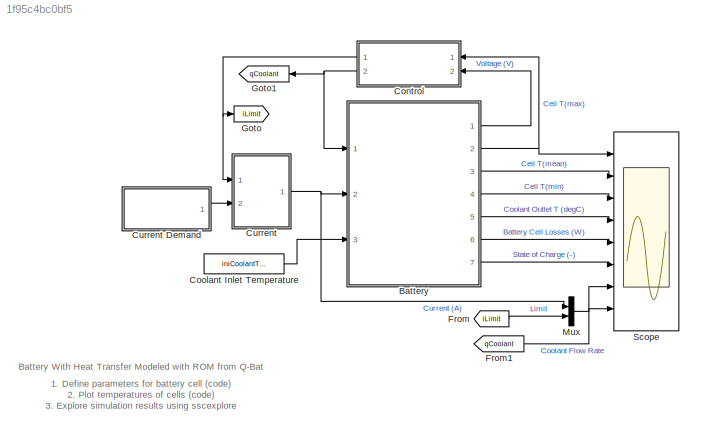
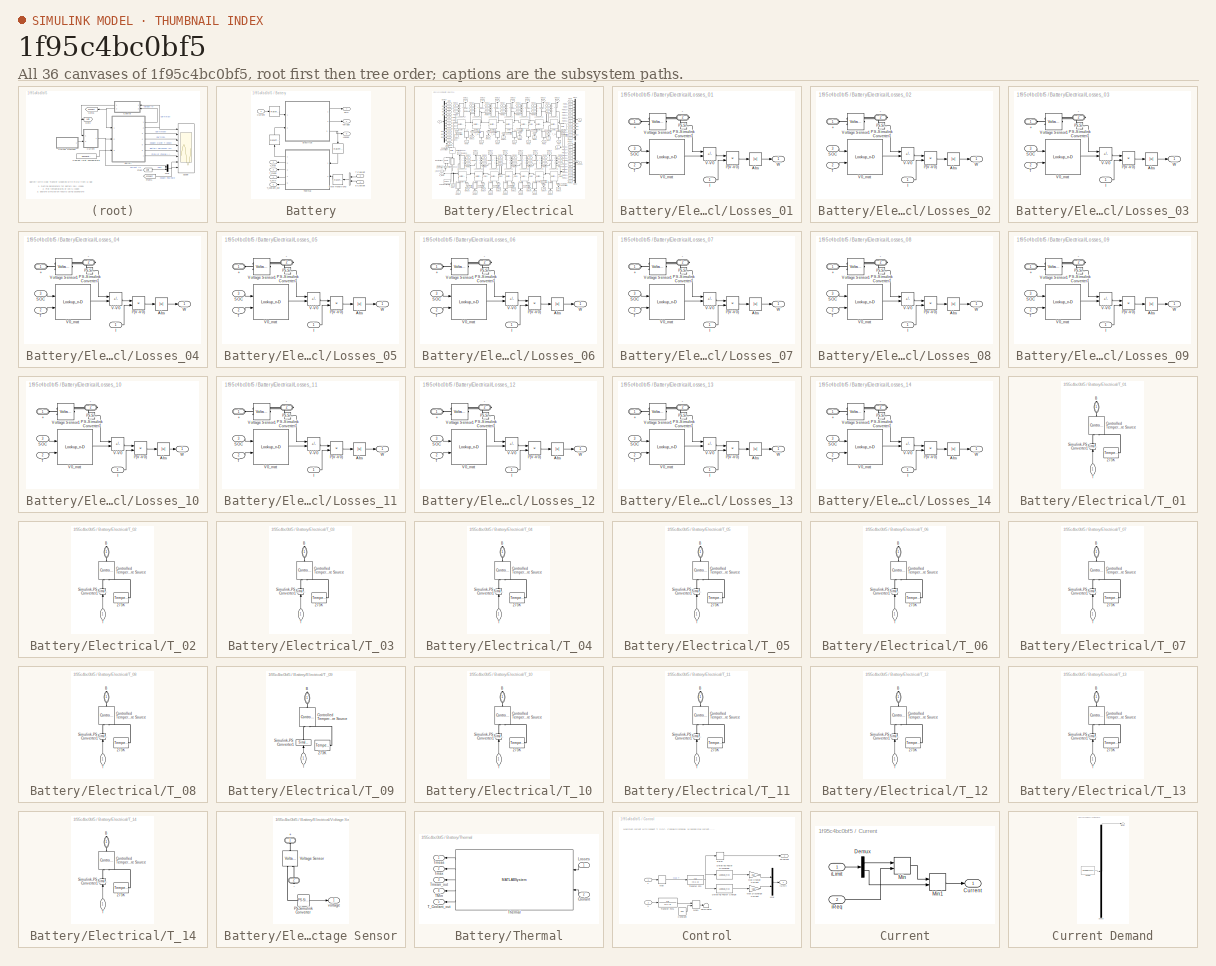
[diagram: thumbnail index - all 36 canvases of the model, root first then tree order]
MODEL slx_1f95c4bc0bf5
KIND model
CONFIG AbsTol = auto
CONFIG EnableMultiTasking = off
CONFIG FixedStep = elec_dt
CONFIG MaxStep = auto
CONFIG MinStep = auto
CONFIG PreLoadFcn = % Model parameters\nssc_battery_rom_qbat_param\n
CONFIG RelTol = 1e-3
CONFIG SampleTimeConstraint = Unconstrained
CONFIG SolverName = ode1be
CONFIG StartTime = 0.0
CONFIG StopTime = 3600
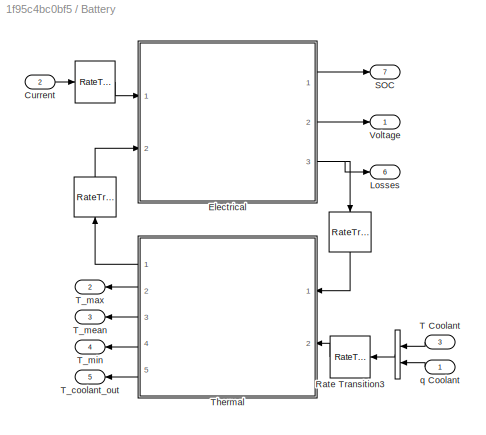
BLOCK [SubSystem] Battery
  Ports = [3, 7]
  RequestExecContextInheritance = off
BLOCK [RateTransition] Battery/ 
  OutPortSampleTime = elec_dt
BLOCK [BusCreator] Battery/  
  DisplayOption = bar
  InheritFromInputs = on
  Inputs = 2
  Ports = [2, 1]
BLOCK [RateTransition] Battery/   
  InitialCondition = 0 * ones(14, 1)
  NameLocation = left
  OutPortSampleTime = Ts_thermal
BLOCK [RateTransition] Battery/    
  InitialCondition = (T_init_battery-273) * ones(14, 1)
  NameLocation = right
  OutPortSampleTime = Ts_electrical
BLOCK [Inport] Battery/Current
  Port = 2
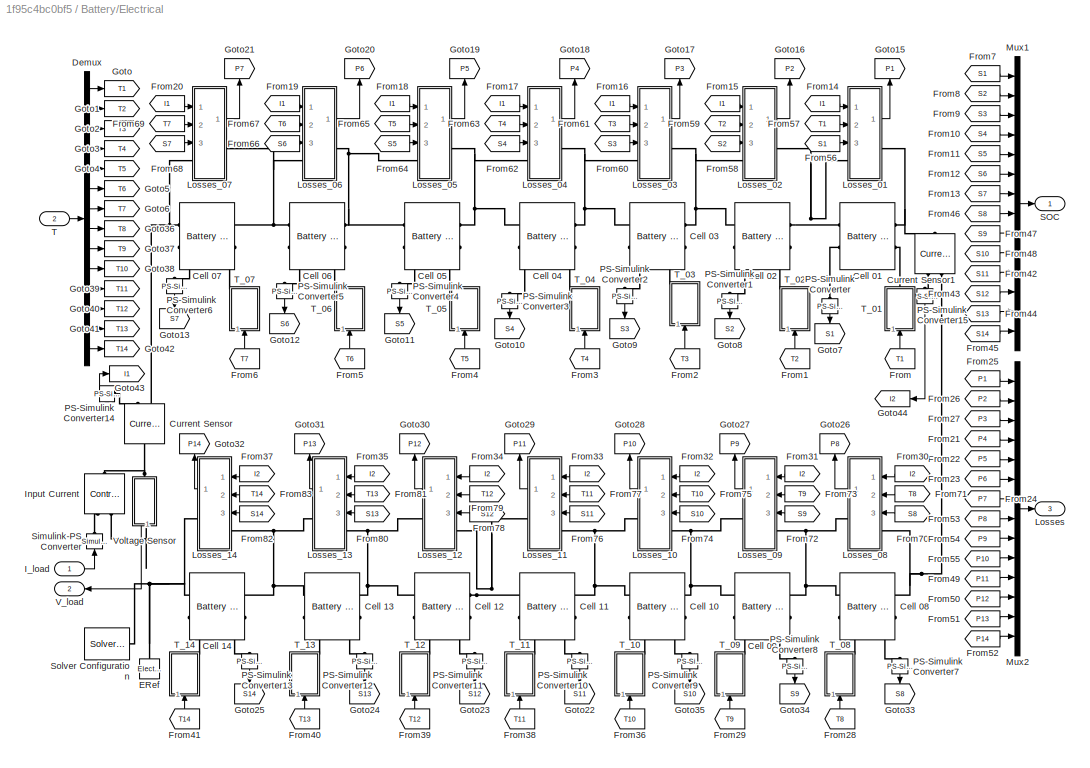
BLOCK [SubSystem] Battery/Electrical
  Ports = [2, 3]
  RequestExecContextInheritance = off
BLOCK [Reference] Battery/Electrical/Cell 01  REF=ee_lib/Sources/Battery
(Table-Based)
  Ports = [0, 0, 0, 0, 0, 2, 2]
  SourceBlock = ee_lib/Sources/Battery\n(Table-Based)
  SourceProductBaseCode = PS
  SourceType = Battery\n(Table-Based)
BLOCK [Reference] Battery/Electrical/Cell 02  REF=ee_lib/Sources/Battery
(Table-Based)
  Ports = [0, 0, 0, 0, 0, 2, 2]
  SourceBlock = ee_lib/Sources/Battery\n(Table-Based)
  SourceProductBaseCode = PS
  SourceType = Battery\n(Table-Based)
BLOCK [Reference] Battery/Electrical/Cell 03  REF=ee_lib/Sources/Battery
(Table-Based)
  Ports = [0, 0, 0, 0, 0, 2, 2]
  SourceBlock = ee_lib/Sources/Battery\n(Table-Based)
  SourceProductBaseCode = PS
  SourceType = Battery\n(Table-Based)
BLOCK [Reference] Battery/Electrical/Cell 04  REF=ee_lib/Sources/Battery
(Table-Based)
  Ports = [0, 0, 0, 0, 0, 2, 2]
  SourceBlock = ee_lib/Sources/Battery\n(Table-Based)
  SourceProductBaseCode = PS
  SourceType = Battery\n(Table-Based)
BLOCK [Reference] Battery/Electrical/Cell 05  REF=ee_lib/Sources/Battery
(Table-Based)
  Ports = [0, 0, 0, 0, 0, 2, 2]
  SourceBlock = ee_lib/Sources/Battery\n(Table-Based)
  SourceProductBaseCode = PS
  SourceType = Battery\n(Table-Based)
BLOCK [Reference] Battery/Electrical/Cell 06  REF=ee_lib/Sources/Battery
(Table-Based)
  Ports = [0, 0, 0, 0, 0, 2, 2]
  SourceBlock = ee_lib/Sources/Battery\n(Table-Based)
  SourceProductBaseCode = PS
  SourceType = Battery\n(Table-Based)
BLOCK [Reference] Battery/Electrical/Cell 07  REF=ee_lib/Sources/Battery
(Table-Based)
  AttributesFormatString = %<R0_mat>
  Ports = [0, 0, 0, 0, 0, 2, 2]
  SourceBlock = ee_lib/Sources/Battery\n(Table-Based)
  SourceProductBaseCode = PS
  SourceType = Battery\n(Table-Based)
BLOCK [Reference] Battery/Electrical/Cell 08  REF=ee_lib/Sources/Battery
(Table-Based)
  Ports = [0, 0, 0, 0, 0, 2, 2]
  SourceBlock = ee_lib/Sources/Battery\n(Table-Based)
  SourceProductBaseCode = PS
  SourceType = Battery\n(Table-Based)
BLOCK [Reference] Battery/Electrical/Cell 09  REF=ee_lib/Sources/Battery
(Table-Based)
  Ports = [0, 0, 0, 0, 0, 2, 2]
  SourceBlock = ee_lib/Sources/Battery\n(Table-Based)
  SourceProductBaseCode = PS
  SourceType = Battery\n(Table-Based)
BLOCK [Reference] Battery/Electrical/Cell 10  REF=ee_lib/Sources/Battery
(Table-Based)
  Ports = [0, 0, 0, 0, 0, 2, 2]
  SourceBlock = ee_lib/Sources/Battery\n(Table-Based)
  SourceProductBaseCode = PS
  SourceType = Battery\n(Table-Based)
BLOCK [Reference] Battery/Electrical/Cell 11  REF=ee_lib/Sources/Battery
(Table-Based)
  Ports = [0, 0, 0, 0, 0, 2, 2]
  SourceBlock = ee_lib/Sources/Battery\n(Table-Based)
  SourceProductBaseCode = PS
  SourceType = Battery\n(Table-Based)
BLOCK [Reference] Battery/Electrical/Cell 12  REF=ee_lib/Sources/Battery
(Table-Based)
  Ports = [0, 0, 0, 0, 0, 2, 2]
  SourceBlock = ee_lib/Sources/Battery\n(Table-Based)
  SourceProductBaseCode = PS
  SourceType = Battery\n(Table-Based)
BLOCK [Reference] Battery/Electrical/Cell 13  REF=ee_lib/Sources/Battery
(Table-Based)
  Ports = [0, 0, 0, 0, 0, 2, 2]
  SourceBlock = ee_lib/Sources/Battery\n(Table-Based)
  SourceProductBaseCode = PS
  SourceType = Battery\n(Table-Based)
BLOCK [Reference] Battery/Electrical/Cell 14  REF=ee_lib/Sources/Battery
(Table-Based)
  Ports = [0, 0, 0, 0, 0, 2, 2]
  SourceBlock = ee_lib/Sources/Battery\n(Table-Based)
  SourceProductBaseCode = PS
  SourceType = Battery\n(Table-Based)
BLOCK [Reference] Battery/Electrical/Current Sensor  REF=fl_lib/Electrical/Electrical Sensors/Current Sensor
  NameLocation = right
  Ports = [0, 0, 0, 0, 0, 1, 2]
  SourceBlock = fl_lib/Electrical/Electrical Sensors/Current Sensor
  SourceProductBaseCode = SS
  SourceType = Current Sensor
BLOCK [Reference] Battery/Electrical/Current Sensor1  REF=fl_lib/Electrical/Electrical Sensors/Current Sensor
  NameLocation = left
  Ports = [0, 0, 0, 0, 0, 1, 2]
  SourceBlock = fl_lib/Electrical/Electrical Sensors/Current Sensor
  SourceProductBaseCode = SS
  SourceType = Current Sensor
BLOCK [Demux] Battery/Electrical/Demux
  NameLocation = top
  Outputs = 14
  Ports = [1, 14]
BLOCK [Reference] Battery/Electrical/ERef  REF=fl_lib/Electrical/Electrical Elements/Electrical Reference
  NameLocation = right
  Ports = [0, 0, 0, 0, 0, 1]
  SourceBlock = fl_lib/Electrical/Electrical Elements/Electrical Reference
  SourceProductBaseCode = SS
  SourceType = Electrical Reference
BLOCK [From] Battery/Electrical/From
  GotoTag = T1
  NameLocation = right
BLOCK [From] Battery/Electrical/From1
  GotoTag = T2
  NameLocation = right
BLOCK [From] Battery/Electrical/From10
  GotoTag = S4
BLOCK [From] Battery/Electrical/From11
  GotoTag = S5
BLOCK [From] Battery/Electrical/From12
  GotoTag = S6
BLOCK [From] Battery/Electrical/From13
  GotoTag = S7
BLOCK [From] Battery/Electrical/From14
  GotoTag = I1
BLOCK [From] Battery/Electrical/From15
  GotoTag = I1
BLOCK [From] Battery/Electrical/From16
  GotoTag = I1
BLOCK [From] Battery/Electrical/From17
  GotoTag = I1
BLOCK [From] Battery/Electrical/From18
  GotoTag = I1
BLOCK [From] Battery/Electrical/From19
  GotoTag = I1
BLOCK [From] Battery/Electrical/From2
  GotoTag = T3
  NameLocation = right
BLOCK [From] Battery/Electrical/From20
  GotoTag = I1
BLOCK [From] Battery/Electrical/From21
  GotoTag = P4
BLOCK [From] Battery/Electrical/From22
  GotoTag = P5
BLOCK [From] Battery/Electrical/From23
  GotoTag = P6
BLOCK [From] Battery/Electrical/From24
  GotoTag = P7
BLOCK [From] Battery/Electrical/From25
  GotoTag = P1
BLOCK [From] Battery/Electrical/From26
  GotoTag = P2
BLOCK [From] Battery/Electrical/From27
  GotoTag = P3
BLOCK [From] Battery/Electrical/From28
  GotoTag = T8
  NameLocation = right
BLOCK [From] Battery/Electrical/From29
  GotoTag = T9
  NameLocation = right
BLOCK [From] Battery/Electrical/From3
  GotoTag = T4
  NameLocation = right
BLOCK [From] Battery/Electrical/From30
  GotoTag = I2
  NameLocation = top
BLOCK [From] Battery/Electrical/From31
  GotoTag = I2
  NameLocation = top
BLOCK [From] Battery/Electrical/From32
  GotoTag = I2
  NameLocation = top
BLOCK [From] Battery/Electrical/From33
  GotoTag = I2
  NameLocation = top
BLOCK [From] Battery/Electrical/From34
  GotoTag = I2
  NameLocation = top
BLOCK [From] Battery/Electrical/From35
  GotoTag = I2
  NameLocation = top
BLOCK [From] Battery/Electrical/From36
  GotoTag = T10
  NameLocation = right
BLOCK [From] Battery/Electrical/From37
  GotoTag = I2
  NameLocation = top
BLOCK [From] Battery/Electrical/From38
  GotoTag = T11
  NameLocation = right
BLOCK [From] Battery/Electrical/From39
  GotoTag = T12
  NameLocation = right
BLOCK [From] Battery/Electrical/From4
  GotoTag = T5
  NameLocation = right
BLOCK [From] Battery/Electrical/From40
  GotoTag = T13
  NameLocation = right
BLOCK [From] Battery/Electrical/From41
  GotoTag = T14
  NameLocation = right
BLOCK [From] Battery/Electrical/From42
  GotoTag = S11
BLOCK [From] Battery/Electrical/From43
  GotoTag = S12
BLOCK [From] Battery/Electrical/From44
  GotoTag = S13
BLOCK [From] Battery/Electrical/From45
  GotoTag = S14
BLOCK [From] Battery/Electrical/From46
  GotoTag = S8
BLOCK [From] Battery/Electrical/From47
  GotoTag = S9
BLOCK [From] Battery/Electrical/From48
  GotoTag = S10
BLOCK [From] Battery/Electrical/From49
  GotoTag = P11
BLOCK [From] Battery/Electrical/From5
  GotoTag = T6
  NameLocation = right
BLOCK [From] Battery/Electrical/From50
  GotoTag = P12
BLOCK [From] Battery/Electrical/From51
  GotoTag = P13
BLOCK [From] Battery/Electrical/From52
  GotoTag = P14
  NameLocation = top
BLOCK [From] Battery/Electrical/From53
  GotoTag = P8
BLOCK [From] Battery/Electrical/From54
  GotoTag = P9
BLOCK [From] Battery/Electrical/From55
  GotoTag = P10
BLOCK [From] Battery/Electrical/From56
  GotoTag = S1
BLOCK [From] Battery/Electrical/From57
  GotoTag = T1
BLOCK [From] Battery/Electrical/From58
  GotoTag = S2
BLOCK [From] Battery/Electrical/From59
  GotoTag = T2
BLOCK [From] Battery/Electrical/From6
  GotoTag = T7
  NameLocation = right
BLOCK [From] Battery/Electrical/From60
  GotoTag = S3
BLOCK [From] Battery/Electrical/From61
  GotoTag = T3
BLOCK [From] Battery/Electrical/From62
  GotoTag = S4
BLOCK [From] Battery/Electrical/From63
  GotoTag = T4
BLOCK [From] Battery/Electrical/From64
  GotoTag = S5
BLOCK [From] Battery/Electrical/From65
  GotoTag = T5
BLOCK [From] Battery/Electrical/From66
  GotoTag = S6
BLOCK [From] Battery/Electrical/From67
  GotoTag = T6
BLOCK [From] Battery/Electrical/From68
  GotoTag = S7
BLOCK [From] Battery/Electrical/From69
  GotoTag = T7
BLOCK [From] Battery/Electrical/From7
  GotoTag = S1
BLOCK [From] Battery/Electrical/From70
  GotoTag = S8
  NameLocation = top
BLOCK [From] Battery/Electrical/From71
  GotoTag = T8
  NameLocation = top
BLOCK [From] Battery/Electrical/From72
  GotoTag = S9
  NameLocation = top
BLOCK [From] Battery/Electrical/From73
  GotoTag = T9
  NameLocation = top
BLOCK [From] Battery/Electrical/From74
  GotoTag = S10
  NameLocation = top
BLOCK [From] Battery/Electrical/From75
  GotoTag = T10
  NameLocation = top
BLOCK [From] Battery/Electrical/From76
  GotoTag = S11
  NameLocation = top
BLOCK [From] Battery/Electrical/From77
  GotoTag = T11
  NameLocation = top
BLOCK [From] Battery/Electrical/From78
  GotoTag = S12
  NameLocation = top
BLOCK [From] Battery/Electrical/From79
  GotoTag = T12
  NameLocation = top
BLOCK [From] Battery/Electrical/From8
  GotoTag = S2
BLOCK [From] Battery/Electrical/From80
  GotoTag = S13
  NameLocation = top
BLOCK [From] Battery/Electrical/From81
  GotoTag = T13
  NameLocation = top
BLOCK [From] Battery/Electrical/From82
  GotoTag = S14
  NameLocation = top
BLOCK [From] Battery/Electrical/From83
  GotoTag = T14
  NameLocation = top
BLOCK [From] Battery/Electrical/From9
  GotoTag = S3
BLOCK [Goto] Battery/Electrical/Goto
  GotoTag = T1
  NameLocation = top
BLOCK [Goto] Battery/Electrical/Goto1
  GotoTag = T2
  NameLocation = top
BLOCK [Goto] Battery/Electrical/Goto10
  GotoTag = S4
  NameLocation = left
BLOCK [Goto] Battery/Electrical/Goto11
  GotoTag = S5
  NameLocation = left
BLOCK [Goto] Battery/Electrical/Goto12
  GotoTag = S6
  NameLocation = left
BLOCK [Goto] Battery/Electrical/Goto13
  GotoTag = S7
  NameLocation = left
BLOCK [Goto] Battery/Electrical/Goto15
  GotoTag = P1
  NameLocation = right
BLOCK [Goto] Battery/Electrical/Goto16
  GotoTag = P2
  NameLocation = right
BLOCK [Goto] Battery/Electrical/Goto17
  GotoTag = P3
  NameLocation = right
BLOCK [Goto] Battery/Electrical/Goto18
  GotoTag = P4
  NameLocation = right
BLOCK [Goto] Battery/Electrical/Goto19
  GotoTag = P5
  NameLocation = right
BLOCK [Goto] Battery/Electrical/Goto2
  GotoTag = T3
  NameLocation = top
BLOCK [Goto] Battery/Electrical/Goto20
  GotoTag = P6
  NameLocation = right
BLOCK [Goto] Battery/Electrical/Goto21
  GotoTag = P7
  NameLocation = right
BLOCK [Goto] Battery/Electrical/Goto22
  GotoTag = S11
  NameLocation = left
BLOCK [Goto] Battery/Electrical/Goto23
  GotoTag = S12
  NameLocation = left
BLOCK [Goto] Battery/Electrical/Goto24
  GotoTag = S13
  NameLocation = left
BLOCK [Goto] Battery/Electrical/Goto25
  GotoTag = S14
  NameLocation = left
BLOCK [Goto] Battery/Electrical/Goto26
  GotoTag = P8
  NameLocation = right
BLOCK [Goto] Battery/Electrical/Goto27
  GotoTag = P9
  NameLocation = right
BLOCK [Goto] Battery/Electrical/Goto28
  GotoTag = P10
  NameLocation = right
BLOCK [Goto] Battery/Electrical/Goto29
  GotoTag = P11
  NameLocation = right
BLOCK [Goto] Battery/Electrical/Goto3
  GotoTag = T4
  NameLocation = top
BLOCK [Goto] Battery/Electrical/Goto30
  GotoTag = P12
  NameLocation = right
BLOCK [Goto] Battery/Electrical/Goto31
  GotoTag = P13
  NameLocation = right
BLOCK [Goto] Battery/Electrical/Goto32
  GotoTag = P14
  NameLocation = right
BLOCK [Goto] Battery/Electrical/Goto33
  GotoTag = S8
  NameLocation = left
BLOCK [Goto] Battery/Electrical/Goto34
  GotoTag = S9
  NameLocation = left
BLOCK [Goto] Battery/Electrical/Goto35
  GotoTag = S10
  NameLocation = left
BLOCK [Goto] Battery/Electrical/Goto36
  GotoTag = T8
  NameLocation = top
BLOCK [Goto] Battery/Electrical/Goto37
  GotoTag = T9
  NameLocation = top
BLOCK [Goto] Battery/Electrical/Goto38
  GotoTag = T10
  NameLocation = top
BLOCK [Goto] Battery/Electrical/Goto39
  GotoTag = T11
  NameLocation = top
BLOCK [Goto] Battery/Electrical/Goto4
  GotoTag = T5
  NameLocation = top
BLOCK [Goto] Battery/Electrical/Goto40
  GotoTag = T12
  NameLocation = top
BLOCK [Goto] Battery/Electrical/Goto41
  GotoTag = T13
  NameLocation = top
BLOCK [Goto] Battery/Electrical/Goto42
  GotoTag = T14
  NameLocation = top
BLOCK [Goto] Battery/Electrical/Goto43
  GotoTag = I1
  NameLocation = top
BLOCK [Goto] Battery/Electrical/Goto44
  GotoTag = I2
BLOCK [Goto] Battery/Electrical/Goto5
  GotoTag = T6
  NameLocation = top
BLOCK [Goto] Battery/Electrical/Goto6
  GotoTag = T7
  NameLocation = top
BLOCK [Goto] Battery/Electrical/Goto7
  GotoTag = S1
  NameLocation = left
BLOCK [Goto] Battery/Electrical/Goto8
  GotoTag = S2
  NameLocation = left
BLOCK [Goto] Battery/Electrical/Goto9
  GotoTag = S3
  NameLocation = left
BLOCK [Inport] Battery/Electrical/I_load
  NameLocation = top
BLOCK [Reference] Battery/Electrical/Input Current  REF=fl_lib/Electrical/Electrical Sources/Controlled Current
Source
  NameLocation = left
  Ports = [0, 0, 0, 0, 0, 1, 2]
  SourceBlock = fl_lib/Electrical/Electrical Sources/Controlled Current\nSource
  SourceProductBaseCode = SS
  SourceType = Controlled Current\nSource
BLOCK [Outport] Battery/Electrical/Losses
  Port = 3
BLOCK [SubSystem] Battery/Electrical/Losses_01
  Ports = [3, 1, 0, 0, 0, 1, 1]
  RequestExecContextInheritance = off
BLOCK [PMIOPort] Battery/Electrical/Losses_01/+
  NameLocation = top
  Side = Left
BLOCK [PMIOPort] Battery/Electrical/Losses_01/-
  Port = 2
  Side = Right
BLOCK [Abs] Battery/Electrical/Losses_01/Abs
  SaturateOnIntegerOverflow = off
BLOCK [Inport] Battery/Electrical/Losses_01/I
BLOCK [Product] Battery/Electrical/Losses_01/I*(V-V0)
  Ports = [2, 1]
BLOCK [Reference] Battery/Electrical/Losses_01/PS-Simulink Converter7  REF=nesl_utility/PS-Simulink
Converter
  Ports = [0, 1, 0, 0, 0, 1]
  SourceBlock = nesl_utility/PS-Simulink\nConverter
  SourceProductBaseCode = PW,SS
  SourceType = PS-Simulink\nConverter
BLOCK [Inport] Battery/Electrical/Losses_01/SOC
  NameLocation = top
  Port = 3
BLOCK [Inport] Battery/Electrical/Losses_01/T
  NameLocation = top
  Port = 2
BLOCK [Sum] Battery/Electrical/Losses_01/V-V0
  IconShape = rectangular
  Inputs = +-
  Ports = [2, 1]
BLOCK [Lookup_n-D] Battery/Electrical/Losses_01/V0_mat
  BreakpointsForDimension1 = SOC_vec
  BreakpointsForDimension2 = T_vec
  InputPortMap = u0,u1
  InternalRulePriority = Speed
  Ports = [2, 1]
  RndMeth = Simplest
  Table = V0_mat
BLOCK [Reference] Battery/Electrical/Losses_01/Voltage Sensor1  REF=fl_lib/Electrical/Electrical Sensors/Voltage Sensor
  NameLocation = top
  Ports = [0, 0, 0, 0, 0, 1, 2]
  SourceBlock = fl_lib/Electrical/Electrical Sensors/Voltage Sensor
  SourceProductBaseCode = SS
  SourceType = Voltage Sensor
BLOCK [Outport] Battery/Electrical/Losses_01/W
BLOCK [SubSystem] Battery/Electrical/Losses_02
  Ports = [3, 1, 0, 0, 0, 1, 1]
  RequestExecContextInheritance = off
BLOCK [PMIOPort] Battery/Electrical/Losses_02/+
  NameLocation = top
  Side = Left
BLOCK [PMIOPort] Battery/Electrical/Losses_02/-
  Port = 2
  Side = Right
BLOCK [Abs] Battery/Electrical/Losses_02/Abs
  SaturateOnIntegerOverflow = off
BLOCK [Inport] Battery/Electrical/Losses_02/I
BLOCK [Product] Battery/Electrical/Losses_02/I*(V-V0)
  Ports = [2, 1]
BLOCK [Reference] Battery/Electrical/Losses_02/PS-Simulink Converter7  REF=nesl_utility/PS-Simulink
Converter
  Ports = [0, 1, 0, 0, 0, 1]
  SourceBlock = nesl_utility/PS-Simulink\nConverter
  SourceProductBaseCode = PW,SS
  SourceType = PS-Simulink\nConverter
BLOCK [Inport] Battery/Electrical/Losses_02/SOC
  NameLocation = top
  Port = 3
BLOCK [Inport] Battery/Electrical/Losses_02/T
  NameLocation = top
  Port = 2
BLOCK [Sum] Battery/Electrical/Losses_02/V-V0
  IconShape = rectangular
  Inputs = +-
  Ports = [2, 1]
BLOCK [Lookup_n-D] Battery/Electrical/Losses_02/V0_mat
  BreakpointsForDimension1 = SOC_vec
  BreakpointsForDimension2 = T_vec
  InputPortMap = u0,u1
  InternalRulePriority = Speed
  Ports = [2, 1]
  RndMeth = Simplest
  Table = V0_mat
BLOCK [Reference] Battery/Electrical/Losses_02/Voltage Sensor1  REF=fl_lib/Electrical/Electrical Sensors/Voltage Sensor
  NameLocation = top
  Ports = [0, 0, 0, 0, 0, 1, 2]
  SourceBlock = fl_lib/Electrical/Electrical Sensors/Voltage Sensor
  SourceProductBaseCode = SS
  SourceType = Voltage Sensor
BLOCK [Outport] Battery/Electrical/Losses_02/W
BLOCK [SubSystem] Battery/Electrical/Losses_03
  Ports = [3, 1, 0, 0, 0, 1, 1]
  RequestExecContextInheritance = off
BLOCK [PMIOPort] Battery/Electrical/Losses_03/+
  NameLocation = top
  Side = Left
BLOCK [PMIOPort] Battery/Electrical/Losses_03/-
  Port = 2
  Side = Right
BLOCK [Abs] Battery/Electrical/Losses_03/Abs
  SaturateOnIntegerOverflow = off
BLOCK [Inport] Battery/Electrical/Losses_03/I
BLOCK [Product] Battery/Electrical/Losses_03/I*(V-V0)
  Ports = [2, 1]
BLOCK [Reference] Battery/Electrical/Losses_03/PS-Simulink Converter7  REF=nesl_utility/PS-Simulink
Converter
  Ports = [0, 1, 0, 0, 0, 1]
  SourceBlock = nesl_utility/PS-Simulink\nConverter
  SourceProductBaseCode = PW,SS
  SourceType = PS-Simulink\nConverter
BLOCK [Inport] Battery/Electrical/Losses_03/SOC
  NameLocation = top
  Port = 3
BLOCK [Inport] Battery/Electrical/Losses_03/T
  NameLocation = top
  Port = 2
BLOCK [Sum] Battery/Electrical/Losses_03/V-V0
  IconShape = rectangular
  Inputs = +-
  Ports = [2, 1]
BLOCK [Lookup_n-D] Battery/Electrical/Losses_03/V0_mat
  BreakpointsForDimension1 = SOC_vec
  BreakpointsForDimension2 = T_vec
  InputPortMap = u0,u1
  InternalRulePriority = Speed
  Ports = [2, 1]
  RndMeth = Simplest
  Table = V0_mat
BLOCK [Reference] Battery/Electrical/Losses_03/Voltage Sensor1  REF=fl_lib/Electrical/Electrical Sensors/Voltage Sensor
  NameLocation = top
  Ports = [0, 0, 0, 0, 0, 1, 2]
  SourceBlock = fl_lib/Electrical/Electrical Sensors/Voltage Sensor
  SourceProductBaseCode = SS
  SourceType = Voltage Sensor
BLOCK [Outport] Battery/Electrical/Losses_03/W
BLOCK [SubSystem] Battery/Electrical/Losses_04
  Ports = [3, 1, 0, 0, 0, 1, 1]
  RequestExecContextInheritance = off
BLOCK [PMIOPort] Battery/Electrical/Losses_04/+
  NameLocation = top
  Side = Left
BLOCK [PMIOPort] Battery/Electrical/Losses_04/-
  Port = 2
  Side = Right
BLOCK [Abs] Battery/Electrical/Losses_04/Abs
  SaturateOnIntegerOverflow = off
BLOCK [Inport] Battery/Electrical/Losses_04/I
BLOCK [Product] Battery/Electrical/Losses_04/I*(V-V0)
  Ports = [2, 1]
BLOCK [Reference] Battery/Electrical/Losses_04/PS-Simulink Converter7  REF=nesl_utility/PS-Simulink
Converter
  Ports = [0, 1, 0, 0, 0, 1]
  SourceBlock = nesl_utility/PS-Simulink\nConverter
  SourceProductBaseCode = PW,SS
  SourceType = PS-Simulink\nConverter
BLOCK [Inport] Battery/Electrical/Losses_04/SOC
  NameLocation = top
  Port = 3
BLOCK [Inport] Battery/Electrical/Losses_04/T
  NameLocation = top
  Port = 2
BLOCK [Sum] Battery/Electrical/Losses_04/V-V0
  IconShape = rectangular
  Inputs = +-
  Ports = [2, 1]
BLOCK [Lookup_n-D] Battery/Electrical/Losses_04/V0_mat
  BreakpointsForDimension1 = SOC_vec
  BreakpointsForDimension2 = T_vec
  InputPortMap = u0,u1
  InternalRulePriority = Speed
  Ports = [2, 1]
  RndMeth = Simplest
  Table = V0_mat
BLOCK [Reference] Battery/Electrical/Losses_04/Voltage Sensor1  REF=fl_lib/Electrical/Electrical Sensors/Voltage Sensor
  NameLocation = top
  Ports = [0, 0, 0, 0, 0, 1, 2]
  SourceBlock = fl_lib/Electrical/Electrical Sensors/Voltage Sensor
  SourceProductBaseCode = SS
  SourceType = Voltage Sensor
BLOCK [Outport] Battery/Electrical/Losses_04/W
BLOCK [SubSystem] Battery/Electrical/Losses_05
  Ports = [3, 1, 0, 0, 0, 1, 1]
  RequestExecContextInheritance = off
BLOCK [PMIOPort] Battery/Electrical/Losses_05/+
  NameLocation = top
  Side = Left
BLOCK [PMIOPort] Battery/Electrical/Losses_05/-
  Port = 2
  Side = Right
BLOCK [Abs] Battery/Electrical/Losses_05/Abs
  SaturateOnIntegerOverflow = off
BLOCK [Inport] Battery/Electrical/Losses_05/I
BLOCK [Product] Battery/Electrical/Losses_05/I*(V-V0)
  Ports = [2, 1]
BLOCK [Reference] Battery/Electrical/Losses_05/PS-Simulink Converter7  REF=nesl_utility/PS-Simulink
Converter
  Ports = [0, 1, 0, 0, 0, 1]
  SourceBlock = nesl_utility/PS-Simulink\nConverter
  SourceProductBaseCode = PW,SS
  SourceType = PS-Simulink\nConverter
BLOCK [Inport] Battery/Electrical/Losses_05/SOC
  NameLocation = top
  Port = 3
BLOCK [Inport] Battery/Electrical/Losses_05/T
  NameLocation = top
  Port = 2
BLOCK [Sum] Battery/Electrical/Losses_05/V-V0
  IconShape = rectangular
  Inputs = +-
  Ports = [2, 1]
BLOCK [Lookup_n-D] Battery/Electrical/Losses_05/V0_mat
  BreakpointsForDimension1 = SOC_vec
  BreakpointsForDimension2 = T_vec
  InputPortMap = u0,u1
  InternalRulePriority = Speed
  Ports = [2, 1]
  RndMeth = Simplest
  Table = V0_mat
BLOCK [Reference] Battery/Electrical/Losses_05/Voltage Sensor1  REF=fl_lib/Electrical/Electrical Sensors/Voltage Sensor
  NameLocation = top
  Ports = [0, 0, 0, 0, 0, 1, 2]
  SourceBlock = fl_lib/Electrical/Electrical Sensors/Voltage Sensor
  SourceProductBaseCode = SS
  SourceType = Voltage Sensor
BLOCK [Outport] Battery/Electrical/Losses_05/W
BLOCK [SubSystem] Battery/Electrical/Losses_06
  Ports = [3, 1, 0, 0, 0, 1, 1]
  RequestExecContextInheritance = off
BLOCK [PMIOPort] Battery/Electrical/Losses_06/+
  NameLocation = top
  Side = Left
BLOCK [PMIOPort] Battery/Electrical/Losses_06/-
  Port = 2
  Side = Right
BLOCK [Abs] Battery/Electrical/Losses_06/Abs
  SaturateOnIntegerOverflow = off
BLOCK [Inport] Battery/Electrical/Losses_06/I
BLOCK [Product] Battery/Electrical/Losses_06/I*(V-V0)
  Ports = [2, 1]
BLOCK [Reference] Battery/Electrical/Losses_06/PS-Simulink Converter7  REF=nesl_utility/PS-Simulink
Converter
  Ports = [0, 1, 0, 0, 0, 1]
  SourceBlock = nesl_utility/PS-Simulink\nConverter
  SourceProductBaseCode = PW,SS
  SourceType = PS-Simulink\nConverter
BLOCK [Inport] Battery/Electrical/Losses_06/SOC
  NameLocation = top
  Port = 3
BLOCK [Inport] Battery/Electrical/Losses_06/T
  NameLocation = top
  Port = 2
BLOCK [Sum] Battery/Electrical/Losses_06/V-V0
  IconShape = rectangular
  Inputs = +-
  Ports = [2, 1]
BLOCK [Lookup_n-D] Battery/Electrical/Losses_06/V0_mat
  BreakpointsForDimension1 = SOC_vec
  BreakpointsForDimension2 = T_vec
  InputPortMap = u0,u1
  InternalRulePriority = Speed
  Ports = [2, 1]
  RndMeth = Simplest
  Table = V0_mat
BLOCK [Reference] Battery/Electrical/Losses_06/Voltage Sensor1  REF=fl_lib/Electrical/Electrical Sensors/Voltage Sensor
  NameLocation = top
  Ports = [0, 0, 0, 0, 0, 1, 2]
  SourceBlock = fl_lib/Electrical/Electrical Sensors/Voltage Sensor
  SourceProductBaseCode = SS
  SourceType = Voltage Sensor
BLOCK [Outport] Battery/Electrical/Losses_06/W
BLOCK [SubSystem] Battery/Electrical/Losses_07
  Ports = [3, 1, 0, 0, 0, 1, 1]
  RequestExecContextInheritance = off
BLOCK [PMIOPort] Battery/Electrical/Losses_07/+
  NameLocation = top
  Side = Left
BLOCK [PMIOPort] Battery/Electrical/Losses_07/-
  Port = 2
  Side = Right
BLOCK [Abs] Battery/Electrical/Losses_07/Abs
  SaturateOnIntegerOverflow = off
BLOCK [Inport] Battery/Electrical/Losses_07/I
BLOCK [Product] Battery/Electrical/Losses_07/I*(V-V0)
  Ports = [2, 1]
BLOCK [Reference] Battery/Electrical/Losses_07/PS-Simulink Converter7  REF=nesl_utility/PS-Simulink
Converter
  Ports = [0, 1, 0, 0, 0, 1]
  SourceBlock = nesl_utility/PS-Simulink\nConverter
  SourceProductBaseCode = PW,SS
  SourceType = PS-Simulink\nConverter
BLOCK [Inport] Battery/Electrical/Losses_07/SOC
  NameLocation = top
  Port = 3
BLOCK [Inport] Battery/Electrical/Losses_07/T
  NameLocation = top
  Port = 2
BLOCK [Sum] Battery/Electrical/Losses_07/V-V0
  IconShape = rectangular
  Inputs = +-
  Ports = [2, 1]
BLOCK [Lookup_n-D] Battery/Electrical/Losses_07/V0_mat
  BreakpointsForDimension1 = SOC_vec
  BreakpointsForDimension2 = T_vec
  InputPortMap = u0,u1
  InternalRulePriority = Speed
  Ports = [2, 1]
  RndMeth = Simplest
  Table = V0_mat
BLOCK [Reference] Battery/Electrical/Losses_07/Voltage Sensor1  REF=fl_lib/Electrical/Electrical Sensors/Voltage Sensor
  NameLocation = top
  Ports = [0, 0, 0, 0, 0, 1, 2]
  SourceBlock = fl_lib/Electrical/Electrical Sensors/Voltage Sensor
  SourceProductBaseCode = SS
  SourceType = Voltage Sensor
BLOCK [Outport] Battery/Electrical/Losses_07/W
BLOCK [SubSystem] Battery/Electrical/Losses_08
  Ports = [3, 1, 0, 0, 0, 1, 1]
  RequestExecContextInheritance = off
BLOCK [PMIOPort] Battery/Electrical/Losses_08/+
  NameLocation = top
  Side = Left
BLOCK [PMIOPort] Battery/Electrical/Losses_08/-
  Port = 2
  Side = Right
BLOCK [Abs] Battery/Electrical/Losses_08/Abs
  SaturateOnIntegerOverflow = off
BLOCK [Inport] Battery/Electrical/Losses_08/I
BLOCK [Product] Battery/Electrical/Losses_08/I*(V-V0)
  Ports = [2, 1]
BLOCK [Reference] Battery/Electrical/Losses_08/PS-Simulink Converter7  REF=nesl_utility/PS-Simulink
Converter
  Ports = [0, 1, 0, 0, 0, 1]
  SourceBlock = nesl_utility/PS-Simulink\nConverter
  SourceProductBaseCode = PW,SS
  SourceType = PS-Simulink\nConverter
BLOCK [Inport] Battery/Electrical/Losses_08/SOC
  NameLocation = top
  Port = 3
BLOCK [Inport] Battery/Electrical/Losses_08/T
  NameLocation = top
  Port = 2
BLOCK [Sum] Battery/Electrical/Losses_08/V-V0
  IconShape = rectangular
  Inputs = +-
  Ports = [2, 1]
BLOCK [Lookup_n-D] Battery/Electrical/Losses_08/V0_mat
  BreakpointsForDimension1 = SOC_vec
  BreakpointsForDimension2 = T_vec
  InputPortMap = u0,u1
  InternalRulePriority = Speed
  Ports = [2, 1]
  RndMeth = Simplest
  Table = V0_mat
BLOCK [Reference] Battery/Electrical/Losses_08/Voltage Sensor1  REF=fl_lib/Electrical/Electrical Sensors/Voltage Sensor
  NameLocation = top
  Ports = [0, 0, 0, 0, 0, 1, 2]
  SourceBlock = fl_lib/Electrical/Electrical Sensors/Voltage Sensor
  SourceProductBaseCode = SS
  SourceType = Voltage Sensor
BLOCK [Outport] Battery/Electrical/Losses_08/W
BLOCK [SubSystem] Battery/Electrical/Losses_09
  Ports = [3, 1, 0, 0, 0, 1, 1]
  RequestExecContextInheritance = off
BLOCK [PMIOPort] Battery/Electrical/Losses_09/+
  NameLocation = top
  Side = Left
BLOCK [PMIOPort] Battery/Electrical/Losses_09/-
  Port = 2
  Side = Right
BLOCK [Abs] Battery/Electrical/Losses_09/Abs
  SaturateOnIntegerOverflow = off
BLOCK [Inport] Battery/Electrical/Losses_09/I
BLOCK [Product] Battery/Electrical/Losses_09/I*(V-V0)
  Ports = [2, 1]
BLOCK [Reference] Battery/Electrical/Losses_09/PS-Simulink Converter7  REF=nesl_utility/PS-Simulink
Converter
  Ports = [0, 1, 0, 0, 0, 1]
  SourceBlock = nesl_utility/PS-Simulink\nConverter
  SourceProductBaseCode = PW,SS
  SourceType = PS-Simulink\nConverter
BLOCK [Inport] Battery/Electrical/Losses_09/SOC
  NameLocation = top
  Port = 3
BLOCK [Inport] Battery/Electrical/Losses_09/T
  NameLocation = top
  Port = 2
BLOCK [Sum] Battery/Electrical/Losses_09/V-V0
  IconShape = rectangular
  Inputs = +-
  Ports = [2, 1]
BLOCK [Lookup_n-D] Battery/Electrical/Losses_09/V0_mat
  BreakpointsForDimension1 = SOC_vec
  BreakpointsForDimension2 = T_vec
  InputPortMap = u0,u1
  InternalRulePriority = Speed
  Ports = [2, 1]
  RndMeth = Simplest
  Table = V0_mat
BLOCK [Reference] Battery/Electrical/Losses_09/Voltage Sensor1  REF=fl_lib/Electrical/Electrical Sensors/Voltage Sensor
  NameLocation = top
  Ports = [0, 0, 0, 0, 0, 1, 2]
  SourceBlock = fl_lib/Electrical/Electrical Sensors/Voltage Sensor
  SourceProductBaseCode = SS
  SourceType = Voltage Sensor
BLOCK [Outport] Battery/Electrical/Losses_09/W
BLOCK [SubSystem] Battery/Electrical/Losses_10
  Ports = [3, 1, 0, 0, 0, 1, 1]
  RequestExecContextInheritance = off
BLOCK [PMIOPort] Battery/Electrical/Losses_10/+
  NameLocation = top
  Side = Left
BLOCK [PMIOPort] Battery/Electrical/Losses_10/-
  Port = 2
  Side = Right
BLOCK [Abs] Battery/Electrical/Losses_10/Abs
  SaturateOnIntegerOverflow = off
BLOCK [Inport] Battery/Electrical/Losses_10/I
BLOCK [Product] Battery/Electrical/Losses_10/I*(V-V0)
  Ports = [2, 1]
BLOCK [Reference] Battery/Electrical/Losses_10/PS-Simulink Converter7  REF=nesl_utility/PS-Simulink
Converter
  Ports = [0, 1, 0, 0, 0, 1]
  SourceBlock = nesl_utility/PS-Simulink\nConverter
  SourceProductBaseCode = PW,SS
  SourceType = PS-Simulink\nConverter
BLOCK [Inport] Battery/Electrical/Losses_10/SOC
  NameLocation = top
  Port = 3
BLOCK [Inport] Battery/Electrical/Losses_10/T
  NameLocation = top
  Port = 2
BLOCK [Sum] Battery/Electrical/Losses_10/V-V0
  IconShape = rectangular
  Inputs = +-
  Ports = [2, 1]
BLOCK [Lookup_n-D] Battery/Electrical/Losses_10/V0_mat
  BreakpointsForDimension1 = SOC_vec
  BreakpointsForDimension2 = T_vec
  InputPortMap = u0,u1
  InternalRulePriority = Speed
  Ports = [2, 1]
  RndMeth = Simplest
  Table = V0_mat
BLOCK [Reference] Battery/Electrical/Losses_10/Voltage Sensor1  REF=fl_lib/Electrical/Electrical Sensors/Voltage Sensor
  NameLocation = top
  Ports = [0, 0, 0, 0, 0, 1, 2]
  SourceBlock = fl_lib/Electrical/Electrical Sensors/Voltage Sensor
  SourceProductBaseCode = SS
  SourceType = Voltage Sensor
BLOCK [Outport] Battery/Electrical/Losses_10/W
BLOCK [SubSystem] Battery/Electrical/Losses_11
  Ports = [3, 1, 0, 0, 0, 1, 1]
  RequestExecContextInheritance = off
BLOCK [PMIOPort] Battery/Electrical/Losses_11/+
  NameLocation = top
  Side = Left
BLOCK [PMIOPort] Battery/Electrical/Losses_11/-
  Port = 2
  Side = Right
BLOCK [Abs] Battery/Electrical/Losses_11/Abs
  SaturateOnIntegerOverflow = off
BLOCK [Inport] Battery/Electrical/Losses_11/I
BLOCK [Product] Battery/Electrical/Losses_11/I*(V-V0)
  Ports = [2, 1]
BLOCK [Reference] Battery/Electrical/Losses_11/PS-Simulink Converter7  REF=nesl_utility/PS-Simulink
Converter
  Ports = [0, 1, 0, 0, 0, 1]
  SourceBlock = nesl_utility/PS-Simulink\nConverter
  SourceProductBaseCode = PW,SS
  SourceType = PS-Simulink\nConverter
BLOCK [Inport] Battery/Electrical/Losses_11/SOC
  NameLocation = top
  Port = 3
BLOCK [Inport] Battery/Electrical/Losses_11/T
  NameLocation = top
  Port = 2
BLOCK [Sum] Battery/Electrical/Losses_11/V-V0
  IconShape = rectangular
  Inputs = +-
  Ports = [2, 1]
BLOCK [Lookup_n-D] Battery/Electrical/Losses_11/V0_mat
  BreakpointsForDimension1 = SOC_vec
  BreakpointsForDimension2 = T_vec
  InputPortMap = u0,u1
  InternalRulePriority = Speed
  Ports = [2, 1]
  RndMeth = Simplest
  Table = V0_mat
BLOCK [Reference] Battery/Electrical/Losses_11/Voltage Sensor1  REF=fl_lib/Electrical/Electrical Sensors/Voltage Sensor
  NameLocation = top
  Ports = [0, 0, 0, 0, 0, 1, 2]
  SourceBlock = fl_lib/Electrical/Electrical Sensors/Voltage Sensor
  SourceProductBaseCode = SS
  SourceType = Voltage Sensor
BLOCK [Outport] Battery/Electrical/Losses_11/W
BLOCK [SubSystem] Battery/Electrical/Losses_12
  Ports = [3, 1, 0, 0, 0, 1, 1]
  RequestExecContextInheritance = off
BLOCK [PMIOPort] Battery/Electrical/Losses_12/+
  NameLocation = top
  Side = Left
BLOCK [PMIOPort] Battery/Electrical/Losses_12/-
  Port = 2
  Side = Right
BLOCK [Abs] Battery/Electrical/Losses_12/Abs
  SaturateOnIntegerOverflow = off
BLOCK [Inport] Battery/Electrical/Losses_12/I
BLOCK [Product] Battery/Electrical/Losses_12/I*(V-V0)
  Ports = [2, 1]
BLOCK [Reference] Battery/Electrical/Losses_12/PS-Simulink Converter7  REF=nesl_utility/PS-Simulink
Converter
  Ports = [0, 1, 0, 0, 0, 1]
  SourceBlock = nesl_utility/PS-Simulink\nConverter
  SourceProductBaseCode = PW,SS
  SourceType = PS-Simulink\nConverter
BLOCK [Inport] Battery/Electrical/Losses_12/SOC
  NameLocation = top
  Port = 3
BLOCK [Inport] Battery/Electrical/Losses_12/T
  NameLocation = top
  Port = 2
BLOCK [Sum] Battery/Electrical/Losses_12/V-V0
  IconShape = rectangular
  Inputs = +-
  Ports = [2, 1]
BLOCK [Lookup_n-D] Battery/Electrical/Losses_12/V0_mat
  BreakpointsForDimension1 = SOC_vec
  BreakpointsForDimension2 = T_vec
  InputPortMap = u0,u1
  InternalRulePriority = Speed
  Ports = [2, 1]
  RndMeth = Simplest
  Table = V0_mat
BLOCK [Reference] Battery/Electrical/Losses_12/Voltage Sensor1  REF=fl_lib/Electrical/Electrical Sensors/Voltage Sensor
  NameLocation = top
  Ports = [0, 0, 0, 0, 0, 1, 2]
  SourceBlock = fl_lib/Electrical/Electrical Sensors/Voltage Sensor
  SourceProductBaseCode = SS
  SourceType = Voltage Sensor
BLOCK [Outport] Battery/Electrical/Losses_12/W
BLOCK [SubSystem] Battery/Electrical/Losses_13
  Ports = [3, 1, 0, 0, 0, 1, 1]
  RequestExecContextInheritance = off
BLOCK [PMIOPort] Battery/Electrical/Losses_13/+
  NameLocation = top
  Side = Left
BLOCK [PMIOPort] Battery/Electrical/Losses_13/-
  Port = 2
  Side = Right
BLOCK [Abs] Battery/Electrical/Losses_13/Abs
  SaturateOnIntegerOverflow = off
BLOCK [Inport] Battery/Electrical/Losses_13/I
BLOCK [Product] Battery/Electrical/Losses_13/I*(V-V0)
  Ports = [2, 1]
BLOCK [Reference] Battery/Electrical/Losses_13/PS-Simulink Converter7  REF=nesl_utility/PS-Simulink
Converter
  Ports = [0, 1, 0, 0, 0, 1]
  SourceBlock = nesl_utility/PS-Simulink\nConverter
  SourceProductBaseCode = PW,SS
  SourceType = PS-Simulink\nConverter
BLOCK [Inport] Battery/Electrical/Losses_13/SOC
  NameLocation = top
  Port = 3
BLOCK [Inport] Battery/Electrical/Losses_13/T
  NameLocation = top
  Port = 2
BLOCK [Sum] Battery/Electrical/Losses_13/V-V0
  IconShape = rectangular
  Inputs = +-
  Ports = [2, 1]
BLOCK [Lookup_n-D] Battery/Electrical/Losses_13/V0_mat
  BreakpointsForDimension1 = SOC_vec
  BreakpointsForDimension2 = T_vec
  InputPortMap = u0,u1
  InternalRulePriority = Speed
  Ports = [2, 1]
  RndMeth = Simplest
  Table = V0_mat
BLOCK [Reference] Battery/Electrical/Losses_13/Voltage Sensor1  REF=fl_lib/Electrical/Electrical Sensors/Voltage Sensor
  NameLocation = top
  Ports = [0, 0, 0, 0, 0, 1, 2]
  SourceBlock = fl_lib/Electrical/Electrical Sensors/Voltage Sensor
  SourceProductBaseCode = SS
  SourceType = Voltage Sensor
BLOCK [Outport] Battery/Electrical/Losses_13/W
BLOCK [SubSystem] Battery/Electrical/Losses_14
  Ports = [3, 1, 0, 0, 0, 1, 1]
  RequestExecContextInheritance = off
BLOCK [PMIOPort] Battery/Electrical/Losses_14/+
  NameLocation = top
  Side = Left
BLOCK [PMIOPort] Battery/Electrical/Losses_14/-
  Port = 2
  Side = Right
BLOCK [Abs] Battery/Electrical/Losses_14/Abs
  SaturateOnIntegerOverflow = off
BLOCK [Inport] Battery/Electrical/Losses_14/I
BLOCK [Product] Battery/Electrical/Losses_14/I*(V-V0)
  Ports = [2, 1]
BLOCK [Reference] Battery/Electrical/Losses_14/PS-Simulink Converter7  REF=nesl_utility/PS-Simulink
Converter
  Ports = [0, 1, 0, 0, 0, 1]
  SourceBlock = nesl_utility/PS-Simulink\nConverter
  SourceProductBaseCode = PW,SS
  SourceType = PS-Simulink\nConverter
BLOCK [Inport] Battery/Electrical/Losses_14/SOC
  NameLocation = top
  Port = 3
BLOCK [Inport] Battery/Electrical/Losses_14/T
  NameLocation = top
  Port = 2
BLOCK [Sum] Battery/Electrical/Losses_14/V-V0
  IconShape = rectangular
  Inputs = +-
  Ports = [2, 1]
BLOCK [Lookup_n-D] Battery/Electrical/Losses_14/V0_mat
  BreakpointsForDimension1 = SOC_vec
  BreakpointsForDimension2 = T_vec
  InputPortMap = u0,u1
  InternalRulePriority = Speed
  Ports = [2, 1]
  RndMeth = Simplest
  Table = V0_mat
BLOCK [Reference] Battery/Electrical/Losses_14/Voltage Sensor1  REF=fl_lib/Electrical/Electrical Sensors/Voltage Sensor
  NameLocation = top
  Ports = [0, 0, 0, 0, 0, 1, 2]
  SourceBlock = fl_lib/Electrical/Electrical Sensors/Voltage Sensor
  SourceProductBaseCode = SS
  SourceType = Voltage Sensor
BLOCK [Outport] Battery/Electrical/Losses_14/W
BLOCK [Mux] Battery/Electrical/Mux1
  DisplayOption = bar
  Inputs = 14
  Ports = [14, 1]
BLOCK [Mux] Battery/Electrical/Mux2
  DisplayOption = bar
  Inputs = 14
  Ports = [14, 1]
BLOCK [Reference] Battery/Electrical/PS-Simulink Converter  REF=nesl_utility/PS-Simulink
Converter
  NameLocation = left
  Ports = [0, 1, 0, 0, 0, 1]
  SourceBlock = nesl_utility/PS-Simulink\nConverter
  SourceProductBaseCode = PW,SS
  SourceType = PS-Simulink\nConverter
BLOCK [Reference] Battery/Electrical/PS-Simulink Converter1  REF=nesl_utility/PS-Simulink
Converter
  NameLocation = left
  Ports = [0, 1, 0, 0, 0, 1]
  SourceBlock = nesl_utility/PS-Simulink\nConverter
  SourceProductBaseCode = PW,SS
  SourceType = PS-Simulink\nConverter
BLOCK [Reference] Battery/Electrical/PS-Simulink Converter10  REF=nesl_utility/PS-Simulink
Converter
  NameLocation = left
  Ports = [0, 1, 0, 0, 0, 1]
  SourceBlock = nesl_utility/PS-Simulink\nConverter
  SourceProductBaseCode = PW,SS
  SourceType = PS-Simulink\nConverter
BLOCK [Reference] Battery/Electrical/PS-Simulink Converter11  REF=nesl_utility/PS-Simulink
Converter
  NameLocation = left
  Ports = [0, 1, 0, 0, 0, 1]
  SourceBlock = nesl_utility/PS-Simulink\nConverter
  SourceProductBaseCode = PW,SS
  SourceType = PS-Simulink\nConverter
BLOCK [Reference] Battery/Electrical/PS-Simulink Converter12  REF=nesl_utility/PS-Simulink
Converter
  NameLocation = left
  Ports = [0, 1, 0, 0, 0, 1]
  SourceBlock = nesl_utility/PS-Simulink\nConverter
  SourceProductBaseCode = PW,SS
  SourceType = PS-Simulink\nConverter
BLOCK [Reference] Battery/Electrical/PS-Simulink Converter13  REF=nesl_utility/PS-Simulink
Converter
  NameLocation = left
  Ports = [0, 1, 0, 0, 0, 1]
  SourceBlock = nesl_utility/PS-Simulink\nConverter
  SourceProductBaseCode = PW,SS
  SourceType = PS-Simulink\nConverter
BLOCK [Reference] Battery/Electrical/PS-Simulink Converter14  REF=nesl_utility/PS-Simulink
Converter
  Ports = [0, 1, 0, 0, 0, 1]
  SourceBlock = nesl_utility/PS-Simulink\nConverter
  SourceProductBaseCode = PW,SS
  SourceType = PS-Simulink\nConverter
BLOCK [Reference] Battery/Electrical/PS-Simulink Converter15  REF=nesl_utility/PS-Simulink
Converter
  NameLocation = right
  Ports = [0, 1, 0, 0, 0, 1]
  SourceBlock = nesl_utility/PS-Simulink\nConverter
  SourceProductBaseCode = PW,SS
  SourceType = PS-Simulink\nConverter
BLOCK [Reference] Battery/Electrical/PS-Simulink Converter2  REF=nesl_utility/PS-Simulink
Converter
  NameLocation = left
  Ports = [0, 1, 0, 0, 0, 1]
  SourceBlock = nesl_utility/PS-Simulink\nConverter
  SourceProductBaseCode = PW,SS
  SourceType = PS-Simulink\nConverter
BLOCK [Reference] Battery/Electrical/PS-Simulink Converter3  REF=nesl_utility/PS-Simulink
Converter
  NameLocation = right
  Ports = [0, 1, 0, 0, 0, 1]
  SourceBlock = nesl_utility/PS-Simulink\nConverter
  SourceProductBaseCode = PW,SS
  SourceType = PS-Simulink\nConverter
BLOCK [Reference] Battery/Electrical/PS-Simulink Converter4  REF=nesl_utility/PS-Simulink
Converter
  NameLocation = left
  Ports = [0, 1, 0, 0, 0, 1]
  SourceBlock = nesl_utility/PS-Simulink\nConverter
  SourceProductBaseCode = PW,SS
  SourceType = PS-Simulink\nConverter
BLOCK [Reference] Battery/Electrical/PS-Simulink Converter5  REF=nesl_utility/PS-Simulink
Converter
  NameLocation = left
  Ports = [0, 1, 0, 0, 0, 1]
  SourceBlock = nesl_utility/PS-Simulink\nConverter
  SourceProductBaseCode = PW,SS
  SourceType = PS-Simulink\nConverter
BLOCK [Reference] Battery/Electrical/PS-Simulink Converter6  REF=nesl_utility/PS-Simulink
Converter
  NameLocation = left
  Ports = [0, 1, 0, 0, 0, 1]
  SourceBlock = nesl_utility/PS-Simulink\nConverter
  SourceProductBaseCode = PW,SS
  SourceType = PS-Simulink\nConverter
BLOCK [Reference] Battery/Electrical/PS-Simulink Converter7  REF=nesl_utility/PS-Simulink
Converter
  NameLocation = left
  Ports = [0, 1, 0, 0, 0, 1]
  SourceBlock = nesl_utility/PS-Simulink\nConverter
  SourceProductBaseCode = PW,SS
  SourceType = PS-Simulink\nConverter
BLOCK [Reference] Battery/Electrical/PS-Simulink Converter8  REF=nesl_utility/PS-Simulink
Converter
  NameLocation = left
  Ports = [0, 1, 0, 0, 0, 1]
  SourceBlock = nesl_utility/PS-Simulink\nConverter
  SourceProductBaseCode = PW,SS
  SourceType = PS-Simulink\nConverter
BLOCK [Reference] Battery/Electrical/PS-Simulink Converter9  REF=nesl_utility/PS-Simulink
Converter
  NameLocation = left
  Ports = [0, 1, 0, 0, 0, 1]
  SourceBlock = nesl_utility/PS-Simulink\nConverter
  SourceProductBaseCode = PW,SS
  SourceType = PS-Simulink\nConverter
BLOCK [Outport] Battery/Electrical/SOC
BLOCK [Reference] Battery/Electrical/Simulink-PS Converter  REF=nesl_utility/Simulink-PS
Converter
  NameLocation = left
  Ports = [1, 0, 0, 0, 0, 0, 1]
  SourceBlock = nesl_utility/Simulink-PS\nConverter
  SourceProductBaseCode = PW,SS
  SourceType = Simulink-PS\nConverter
BLOCK [Reference] Battery/Electrical/Solver Configuration  REF=nesl_utility/Solver
Configuration
  NameLocation = top
  Ports = [0, 0, 0, 0, 0, 0, 1]
  SourceBlock = nesl_utility/Solver\nConfiguration
  SourceProductBaseCode = PW,SS
  SourceType = Solver\nConfiguration
BLOCK [Inport] Battery/Electrical/T
  NameLocation = top
  Port = 2
BLOCK [SubSystem] Battery/Electrical/T_01
  NameLocation = left
  Ports = [1, 0, 0, 0, 0, 0, 1]
  RequestExecContextInheritance = off
BLOCK [Reference] Battery/Electrical/T_01/273K  REF=fl_lib/Thermal/Thermal Sources/Temperature Source
  NameLocation = top
  Ports = [0, 0, 0, 0, 0, 1]
  SourceBlock = fl_lib/Thermal/Thermal Sources/Temperature Source
  SourceProductBaseCode = SS
  SourceType = Temperature Source
BLOCK [PMIOPort] Battery/Electrical/T_01/B
  NameLocation = left
  Side = Right
BLOCK [Reference] Battery/Electrical/T_01/Controlled Temperature Source  REF=fl_lib/Thermal/Thermal Sources/Controlled
Temperature Source
  NameLocation = right
  Ports = [0, 0, 0, 0, 0, 1, 2]
  SourceBlock = fl_lib/Thermal/Thermal Sources/Controlled\nTemperature Source
  SourceProductBaseCode = SS
  SourceType = Controlled\nTemperature Source
BLOCK [Reference] Battery/Electrical/T_01/Simulink-PS Converter1  REF=nesl_utility/Simulink-PS
Converter
  NameLocation = right
  Ports = [1, 0, 0, 0, 0, 0, 1]
  SourceBlock = nesl_utility/Simulink-PS\nConverter
  SourceProductBaseCode = PW,SS
  SourceType = Simulink-PS\nConverter
BLOCK [Inport] Battery/Electrical/T_01/T
  NameLocation = right
BLOCK [SubSystem] Battery/Electrical/T_02
  NameLocation = left
  Ports = [1, 0, 0, 0, 0, 0, 1]
  RequestExecContextInheritance = off
BLOCK [Reference] Battery/Electrical/T_02/273K  REF=fl_lib/Thermal/Thermal Sources/Temperature Source
  NameLocation = top
  Ports = [0, 0, 0, 0, 0, 1]
  SourceBlock = fl_lib/Thermal/Thermal Sources/Temperature Source
  SourceProductBaseCode = SS
  SourceType = Temperature Source
BLOCK [PMIOPort] Battery/Electrical/T_02/B
  NameLocation = left
  Side = Right
BLOCK [Reference] Battery/Electrical/T_02/Controlled Temperature Source  REF=fl_lib/Thermal/Thermal Sources/Controlled
Temperature Source
  NameLocation = right
  Ports = [0, 0, 0, 0, 0, 1, 2]
  SourceBlock = fl_lib/Thermal/Thermal Sources/Controlled\nTemperature Source
  SourceProductBaseCode = SS
  SourceType = Controlled\nTemperature Source
BLOCK [Reference] Battery/Electrical/T_02/Simulink-PS Converter1  REF=nesl_utility/Simulink-PS
Converter
  NameLocation = right
  Ports = [1, 0, 0, 0, 0, 0, 1]
  SourceBlock = nesl_utility/Simulink-PS\nConverter
  SourceProductBaseCode = PW,SS
  SourceType = Simulink-PS\nConverter
BLOCK [Inport] Battery/Electrical/T_02/T
  NameLocation = right
BLOCK [SubSystem] Battery/Electrical/T_03
  NameLocation = left
  Ports = [1, 0, 0, 0, 0, 0, 1]
  RequestExecContextInheritance = off
BLOCK [Reference] Battery/Electrical/T_03/273K  REF=fl_lib/Thermal/Thermal Sources/Temperature Source
  NameLocation = top
  Ports = [0, 0, 0, 0, 0, 1]
  SourceBlock = fl_lib/Thermal/Thermal Sources/Temperature Source
  SourceProductBaseCode = SS
  SourceType = Temperature Source
BLOCK [PMIOPort] Battery/Electrical/T_03/B
  NameLocation = left
  Side = Right
BLOCK [Reference] Battery/Electrical/T_03/Controlled Temperature Source  REF=fl_lib/Thermal/Thermal Sources/Controlled
Temperature Source
  NameLocation = right
  Ports = [0, 0, 0, 0, 0, 1, 2]
  SourceBlock = fl_lib/Thermal/Thermal Sources/Controlled\nTemperature Source
  SourceProductBaseCode = SS
  SourceType = Controlled\nTemperature Source
BLOCK [Reference] Battery/Electrical/T_03/Simulink-PS Converter1  REF=nesl_utility/Simulink-PS
Converter
  NameLocation = right
  Ports = [1, 0, 0, 0, 0, 0, 1]
  SourceBlock = nesl_utility/Simulink-PS\nConverter
  SourceProductBaseCode = PW,SS
  SourceType = Simulink-PS\nConverter
BLOCK [Inport] Battery/Electrical/T_03/T
  NameLocation = right
BLOCK [SubSystem] Battery/Electrical/T_04
  NameLocation = left
  Ports = [1, 0, 0, 0, 0, 0, 1]
  RequestExecContextInheritance = off
BLOCK [Reference] Battery/Electrical/T_04/273K  REF=fl_lib/Thermal/Thermal Sources/Temperature Source
  NameLocation = top
  Ports = [0, 0, 0, 0, 0, 1]
  SourceBlock = fl_lib/Thermal/Thermal Sources/Temperature Source
  SourceProductBaseCode = SS
  SourceType = Temperature Source
BLOCK [PMIOPort] Battery/Electrical/T_04/B
  NameLocation = left
  Side = Right
BLOCK [Reference] Battery/Electrical/T_04/Controlled Temperature Source  REF=fl_lib/Thermal/Thermal Sources/Controlled
Temperature Source
  NameLocation = right
  Ports = [0, 0, 0, 0, 0, 1, 2]
  SourceBlock = fl_lib/Thermal/Thermal Sources/Controlled\nTemperature Source
  SourceProductBaseCode = SS
  SourceType = Controlled\nTemperature Source
BLOCK [Reference] Battery/Electrical/T_04/Simulink-PS Converter1  REF=nesl_utility/Simulink-PS
Converter
  NameLocation = right
  Ports = [1, 0, 0, 0, 0, 0, 1]
  SourceBlock = nesl_utility/Simulink-PS\nConverter
  SourceProductBaseCode = PW,SS
  SourceType = Simulink-PS\nConverter
BLOCK [Inport] Battery/Electrical/T_04/T
  NameLocation = right
BLOCK [SubSystem] Battery/Electrical/T_05
  NameLocation = left
  Ports = [1, 0, 0, 0, 0, 0, 1]
  RequestExecContextInheritance = off
BLOCK [Reference] Battery/Electrical/T_05/273K  REF=fl_lib/Thermal/Thermal Sources/Temperature Source
  NameLocation = top
  Ports = [0, 0, 0, 0, 0, 1]
  SourceBlock = fl_lib/Thermal/Thermal Sources/Temperature Source
  SourceProductBaseCode = SS
  SourceType = Temperature Source
BLOCK [PMIOPort] Battery/Electrical/T_05/B
  NameLocation = left
  Side = Right
BLOCK [Reference] Battery/Electrical/T_05/Controlled Temperature Source  REF=fl_lib/Thermal/Thermal Sources/Controlled
Temperature Source
  NameLocation = right
  Ports = [0, 0, 0, 0, 0, 1, 2]
  SourceBlock = fl_lib/Thermal/Thermal Sources/Controlled\nTemperature Source
  SourceProductBaseCode = SS
  SourceType = Controlled\nTemperature Source
BLOCK [Reference] Battery/Electrical/T_05/Simulink-PS Converter1  REF=nesl_utility/Simulink-PS
Converter
  NameLocation = right
  Ports = [1, 0, 0, 0, 0, 0, 1]
  SourceBlock = nesl_utility/Simulink-PS\nConverter
  SourceProductBaseCode = PW,SS
  SourceType = Simulink-PS\nConverter
BLOCK [Inport] Battery/Electrical/T_05/T
  NameLocation = right
BLOCK [SubSystem] Battery/Electrical/T_06
  NameLocation = left
  Ports = [1, 0, 0, 0, 0, 0, 1]
  RequestExecContextInheritance = off
BLOCK [Reference] Battery/Electrical/T_06/273K  REF=fl_lib/Thermal/Thermal Sources/Temperature Source
  NameLocation = top
  Ports = [0, 0, 0, 0, 0, 1]
  SourceBlock = fl_lib/Thermal/Thermal Sources/Temperature Source
  SourceProductBaseCode = SS
  SourceType = Temperature Source
BLOCK [PMIOPort] Battery/Electrical/T_06/B
  NameLocation = left
  Side = Right
BLOCK [Reference] Battery/Electrical/T_06/Controlled Temperature Source  REF=fl_lib/Thermal/Thermal Sources/Controlled
Temperature Source
  NameLocation = right
  Ports = [0, 0, 0, 0, 0, 1, 2]
  SourceBlock = fl_lib/Thermal/Thermal Sources/Controlled\nTemperature Source
  SourceProductBaseCode = SS
  SourceType = Controlled\nTemperature Source
BLOCK [Reference] Battery/Electrical/T_06/Simulink-PS Converter1  REF=nesl_utility/Simulink-PS
Converter
  NameLocation = right
  Ports = [1, 0, 0, 0, 0, 0, 1]
  SourceBlock = nesl_utility/Simulink-PS\nConverter
  SourceProductBaseCode = PW,SS
  SourceType = Simulink-PS\nConverter
BLOCK [Inport] Battery/Electrical/T_06/T
  NameLocation = right
BLOCK [SubSystem] Battery/Electrical/T_07
  NameLocation = left
  Ports = [1, 0, 0, 0, 0, 0, 1]
  RequestExecContextInheritance = off
BLOCK [Reference] Battery/Electrical/T_07/273K  REF=fl_lib/Thermal/Thermal Sources/Temperature Source
  NameLocation = top
  Ports = [0, 0, 0, 0, 0, 1]
  SourceBlock = fl_lib/Thermal/Thermal Sources/Temperature Source
  SourceProductBaseCode = SS
  SourceType = Temperature Source
BLOCK [PMIOPort] Battery/Electrical/T_07/B
  NameLocation = left
  Side = Right
BLOCK [Reference] Battery/Electrical/T_07/Controlled Temperature Source  REF=fl_lib/Thermal/Thermal Sources/Controlled
Temperature Source
  NameLocation = right
  Ports = [0, 0, 0, 0, 0, 1, 2]
  SourceBlock = fl_lib/Thermal/Thermal Sources/Controlled\nTemperature Source
  SourceProductBaseCode = SS
  SourceType = Controlled\nTemperature Source
BLOCK [Reference] Battery/Electrical/T_07/Simulink-PS Converter1  REF=nesl_utility/Simulink-PS
Converter
  NameLocation = right
  Ports = [1, 0, 0, 0, 0, 0, 1]
  SourceBlock = nesl_utility/Simulink-PS\nConverter
  SourceProductBaseCode = PW,SS
  SourceType = Simulink-PS\nConverter
BLOCK [Inport] Battery/Electrical/T_07/T
  NameLocation = right
BLOCK [SubSystem] Battery/Electrical/T_08
  NameLocation = right
  Ports = [1, 0, 0, 0, 0, 0, 1]
  RequestExecContextInheritance = off
BLOCK [Reference] Battery/Electrical/T_08/273K  REF=fl_lib/Thermal/Thermal Sources/Temperature Source
  NameLocation = top
  Ports = [0, 0, 0, 0, 0, 1]
  SourceBlock = fl_lib/Thermal/Thermal Sources/Temperature Source
  SourceProductBaseCode = SS
  SourceType = Temperature Source
BLOCK [PMIOPort] Battery/Electrical/T_08/B
  NameLocation = left
  Side = Right
BLOCK [Reference] Battery/Electrical/T_08/Controlled Temperature Source  REF=fl_lib/Thermal/Thermal Sources/Controlled
Temperature Source
  NameLocation = right
  Ports = [0, 0, 0, 0, 0, 1, 2]
  SourceBlock = fl_lib/Thermal/Thermal Sources/Controlled\nTemperature Source
  SourceProductBaseCode = SS
  SourceType = Controlled\nTemperature Source
BLOCK [Reference] Battery/Electrical/T_08/Simulink-PS Converter1  REF=nesl_utility/Simulink-PS
Converter
  NameLocation = right
  Ports = [1, 0, 0, 0, 0, 0, 1]
  SourceBlock = nesl_utility/Simulink-PS\nConverter
  SourceProductBaseCode = PW,SS
  SourceType = Simulink-PS\nConverter
BLOCK [Inport] Battery/Electrical/T_08/T
  NameLocation = right
BLOCK [SubSystem] Battery/Electrical/T_09
  NameLocation = right
  Ports = [1, 0, 0, 0, 0, 0, 1]
  RequestExecContextInheritance = off
BLOCK [Reference] Battery/Electrical/T_09/273K  REF=fl_lib/Thermal/Thermal Sources/Temperature Source
  NameLocation = top
  Ports = [0, 0, 0, 0, 0, 1]
  SourceBlock = fl_lib/Thermal/Thermal Sources/Temperature Source
  SourceProductBaseCode = SS
  SourceType = Temperature Source
BLOCK [PMIOPort] Battery/Electrical/T_09/B
  NameLocation = left
  Side = Right
BLOCK [Reference] Battery/Electrical/T_09/Controlled Temperature Source  REF=fl_lib/Thermal/Thermal Sources/Controlled
Temperature Source
  NameLocation = right
  Ports = [0, 0, 0, 0, 0, 1, 2]
  SourceBlock = fl_lib/Thermal/Thermal Sources/Controlled\nTemperature Source
  SourceProductBaseCode = SS
  SourceType = Controlled\nTemperature Source
BLOCK [Reference] Battery/Electrical/T_09/Simulink-PS Converter1  REF=nesl_utility/Simulink-PS
Converter
  NameLocation = right
  Ports = [1, 0, 0, 0, 0, 0, 1]
  SourceBlock = nesl_utility/Simulink-PS\nConverter
  SourceProductBaseCode = PW,SS
  SourceType = Simulink-PS\nConverter
BLOCK [Inport] Battery/Electrical/T_09/T
  NameLocation = right
BLOCK [SubSystem] Battery/Electrical/T_10
  NameLocation = right
  Ports = [1, 0, 0, 0, 0, 0, 1]
  RequestExecContextInheritance = off
BLOCK [Reference] Battery/Electrical/T_10/273K  REF=fl_lib/Thermal/Thermal Sources/Temperature Source
  NameLocation = top
  Ports = [0, 0, 0, 0, 0, 1]
  SourceBlock = fl_lib/Thermal/Thermal Sources/Temperature Source
  SourceProductBaseCode = SS
  SourceType = Temperature Source
BLOCK [PMIOPort] Battery/Electrical/T_10/B
  NameLocation = left
  Side = Right
BLOCK [Reference] Battery/Electrical/T_10/Controlled Temperature Source  REF=fl_lib/Thermal/Thermal Sources/Controlled
Temperature Source
  NameLocation = right
  Ports = [0, 0, 0, 0, 0, 1, 2]
  SourceBlock = fl_lib/Thermal/Thermal Sources/Controlled\nTemperature Source
  SourceProductBaseCode = SS
  SourceType = Controlled\nTemperature Source
BLOCK [Reference] Battery/Electrical/T_10/Simulink-PS Converter1  REF=nesl_utility/Simulink-PS
Converter
  NameLocation = right
  Ports = [1, 0, 0, 0, 0, 0, 1]
  SourceBlock = nesl_utility/Simulink-PS\nConverter
  SourceProductBaseCode = PW,SS
  SourceType = Simulink-PS\nConverter
BLOCK [Inport] Battery/Electrical/T_10/T
  NameLocation = right
BLOCK [SubSystem] Battery/Electrical/T_11
  NameLocation = right
  Ports = [1, 0, 0, 0, 0, 0, 1]
  RequestExecContextInheritance = off
BLOCK [Reference] Battery/Electrical/T_11/273K  REF=fl_lib/Thermal/Thermal Sources/Temperature Source
  NameLocation = top
  Ports = [0, 0, 0, 0, 0, 1]
  SourceBlock = fl_lib/Thermal/Thermal Sources/Temperature Source
  SourceProductBaseCode = SS
  SourceType = Temperature Source
BLOCK [PMIOPort] Battery/Electrical/T_11/B
  NameLocation = left
  Side = Right
BLOCK [Reference] Battery/Electrical/T_11/Controlled Temperature Source  REF=fl_lib/Thermal/Thermal Sources/Controlled
Temperature Source
  NameLocation = right
  Ports = [0, 0, 0, 0, 0, 1, 2]
  SourceBlock = fl_lib/Thermal/Thermal Sources/Controlled\nTemperature Source
  SourceProductBaseCode = SS
  SourceType = Controlled\nTemperature Source
BLOCK [Reference] Battery/Electrical/T_11/Simulink-PS Converter1  REF=nesl_utility/Simulink-PS
Converter
  NameLocation = right
  Ports = [1, 0, 0, 0, 0, 0, 1]
  SourceBlock = nesl_utility/Simulink-PS\nConverter
  SourceProductBaseCode = PW,SS
  SourceType = Simulink-PS\nConverter
BLOCK [Inport] Battery/Electrical/T_11/T
  NameLocation = right
BLOCK [SubSystem] Battery/Electrical/T_12
  NameLocation = right
  Ports = [1, 0, 0, 0, 0, 0, 1]
  RequestExecContextInheritance = off
BLOCK [Reference] Battery/Electrical/T_12/273K  REF=fl_lib/Thermal/Thermal Sources/Temperature Source
  NameLocation = top
  Ports = [0, 0, 0, 0, 0, 1]
  SourceBlock = fl_lib/Thermal/Thermal Sources/Temperature Source
  SourceProductBaseCode = SS
  SourceType = Temperature Source
BLOCK [PMIOPort] Battery/Electrical/T_12/B
  NameLocation = left
  Side = Right
BLOCK [Reference] Battery/Electrical/T_12/Controlled Temperature Source  REF=fl_lib/Thermal/Thermal Sources/Controlled
Temperature Source
  NameLocation = right
  Ports = [0, 0, 0, 0, 0, 1, 2]
  SourceBlock = fl_lib/Thermal/Thermal Sources/Controlled\nTemperature Source
  SourceProductBaseCode = SS
  SourceType = Controlled\nTemperature Source
BLOCK [Reference] Battery/Electrical/T_12/Simulink-PS Converter1  REF=nesl_utility/Simulink-PS
Converter
  NameLocation = right
  Ports = [1, 0, 0, 0, 0, 0, 1]
  SourceBlock = nesl_utility/Simulink-PS\nConverter
  SourceProductBaseCode = PW,SS
  SourceType = Simulink-PS\nConverter
BLOCK [Inport] Battery/Electrical/T_12/T
  NameLocation = right
BLOCK [SubSystem] Battery/Electrical/T_13
  NameLocation = right
  Ports = [1, 0, 0, 0, 0, 0, 1]
  RequestExecContextInheritance = off
BLOCK [Reference] Battery/Electrical/T_13/273K  REF=fl_lib/Thermal/Thermal Sources/Temperature Source
  NameLocation = top
  Ports = [0, 0, 0, 0, 0, 1]
  SourceBlock = fl_lib/Thermal/Thermal Sources/Temperature Source
  SourceProductBaseCode = SS
  SourceType = Temperature Source
BLOCK [PMIOPort] Battery/Electrical/T_13/B
  NameLocation = left
  Side = Right
BLOCK [Reference] Battery/Electrical/T_13/Controlled Temperature Source  REF=fl_lib/Thermal/Thermal Sources/Controlled
Temperature Source
  NameLocation = right
  Ports = [0, 0, 0, 0, 0, 1, 2]
  SourceBlock = fl_lib/Thermal/Thermal Sources/Controlled\nTemperature Source
  SourceProductBaseCode = SS
  SourceType = Controlled\nTemperature Source
BLOCK [Reference] Battery/Electrical/T_13/Simulink-PS Converter1  REF=nesl_utility/Simulink-PS
Converter
  NameLocation = right
  Ports = [1, 0, 0, 0, 0, 0, 1]
  SourceBlock = nesl_utility/Simulink-PS\nConverter
  SourceProductBaseCode = PW,SS
  SourceType = Simulink-PS\nConverter
BLOCK [Inport] Battery/Electrical/T_13/T
  NameLocation = right
BLOCK [SubSystem] Battery/Electrical/T_14
  NameLocation = right
  Ports = [1, 0, 0, 0, 0, 0, 1]
  RequestExecContextInheritance = off
BLOCK [Reference] Battery/Electrical/T_14/273K  REF=fl_lib/Thermal/Thermal Sources/Temperature Source
  NameLocation = top
  Ports = [0, 0, 0, 0, 0, 1]
  SourceBlock = fl_lib/Thermal/Thermal Sources/Temperature Source
  SourceProductBaseCode = SS
  SourceType = Temperature Source
BLOCK [PMIOPort] Battery/Electrical/T_14/B
  NameLocation = left
  Side = Right
BLOCK [Reference] Battery/Electrical/T_14/Controlled Temperature Source  REF=fl_lib/Thermal/Thermal Sources/Controlled
Temperature Source
  NameLocation = right
  Ports = [0, 0, 0, 0, 0, 1, 2]
  SourceBlock = fl_lib/Thermal/Thermal Sources/Controlled\nTemperature Source
  SourceProductBaseCode = SS
  SourceType = Controlled\nTemperature Source
BLOCK [Reference] Battery/Electrical/T_14/Simulink-PS Converter1  REF=nesl_utility/Simulink-PS
Converter
  NameLocation = right
  Ports = [1, 0, 0, 0, 0, 0, 1]
  SourceBlock = nesl_utility/Simulink-PS\nConverter
  SourceProductBaseCode = PW,SS
  SourceType = Simulink-PS\nConverter
BLOCK [Inport] Battery/Electrical/T_14/T
  NameLocation = right
BLOCK [Outport] Battery/Electrical/V_load
  Port = 2
BLOCK [SubSystem] Battery/Electrical/Voltage Sensor
  NameLocation = right
  Ports = [0, 1, 0, 0, 0, 1, 1]
  RequestExecContextInheritance = off
BLOCK [PMIOPort] Battery/Electrical/Voltage Sensor/+
  NameLocation = right
  Side = Left
BLOCK [PMIOPort] Battery/Electrical/Voltage Sensor/-
  NameLocation = right
  Port = 2
  Side = Right
BLOCK [Reference] Battery/Electrical/Voltage Sensor/PS-Simulink Converter  REF=nesl_utility/PS-Simulink
Converter
  Ports = [0, 1, 0, 0, 0, 1]
  SourceBlock = nesl_utility/PS-Simulink\nConverter
  SourceProductBaseCode = PW,SS
  SourceType = PS-Simulink\nConverter
BLOCK [Reference] Battery/Electrical/Voltage Sensor/Voltage Sensor  REF=fl_lib/Electrical/Electrical Sensors/Voltage Sensor
  NameLocation = right
  Ports = [0, 0, 0, 0, 0, 1, 2]
  SourceBlock = fl_lib/Electrical/Electrical Sensors/Voltage Sensor
  SourceProductBaseCode = SS
  SourceType = Voltage Sensor
BLOCK [Outport] Battery/Electrical/Voltage Sensor/voltage
BLOCK [Outport] Battery/Losses
  Port = 6
BLOCK [RateTransition] Battery/Rate Transition3
  InitialCondition = [iniCoolantTemp coolant_flow_qoff]
  NameLocation = top
  OutPortSampleTime = Ts_thermal
BLOCK [Outport] Battery/SOC
  Port = 7
BLOCK [Inport] Battery/T  Coolant
  NameLocation = top
  Port = 3
BLOCK [Outport] Battery/T_coolant_out
  Port = 5
BLOCK [Outport] Battery/T_max
  Port = 2
BLOCK [Outport] Battery/T_mean
  Port = 3
BLOCK [Outport] Battery/T_min
  Port = 4
BLOCK [SubSystem] Battery/Thermal
  Ports = [2, 5]
  RequestExecContextInheritance = off
BLOCK [Inport] Battery/Thermal/Coolant
  Port = 2
BLOCK [Inport] Battery/Thermal/Losses
BLOCK [Outport] Battery/Thermal/TMin
  Port = 4
BLOCK [Outport] Battery/Thermal/T_Coolant_out
  Port = 5
BLOCK [MATLABSystem] Battery/Thermal/Thermal
  MaskDisplay = disp('simulink_fem_model');\nport_label('input',1,'ele_source_term');\nport_label('input',2,'bus_input');\nport_label('output',1,'fem_mean_temp');\nport_label('output',2,'fem_max_temp_output');\nport_label('output',3,'fem_mean_temp_output');\nport_label('output',4,'fem_min_temp_output');\nport_label('output',5,'th_outlet_temp_output');
  MaskType = simulink_fem_model
  Ports = [2, 5]
  SimulateUsing = Code generation
  System = simulink_fem_model
  T_init_fem = T_init_battery-273
  T_init_th = T_init_th
  dt = Ts_thermal
  max_res = n_maxres
  max_sub_iter = n_maxsubiters
  solver_type = 1
BLOCK [Outport] Battery/Thermal/Tmax
  Port = 2
BLOCK [Outport] Battery/Thermal/Tmean_out
  Port = 3
BLOCK [Outport] Battery/Thermal/Tmeas
BLOCK [Outport] Battery/Voltage
BLOCK [Inport] Battery/q Coolant
BLOCK [SubSystem] Control
  Ports = [2, 2]
  RequestExecContextInheritance = off
BLOCK [Constant] Control/Constant
  Value = eps
BLOCK [Lookup_n-D] Control/Derating Factor Charge
  BreakpointsForDimension1 = [0 20 40 60]
  ExtrapMethod = Clip
  InputPortMap = u0
  InternalRulePriority = Speed
  NumberOfTableDimensions = 1
  Ports = [1, 1]
  RndMeth = Simplest
  Table = [1 1 1 0]
  UseLastTableValue = on
BLOCK [Lookup_n-D] Control/Derating Factor Discharge
  BreakpointsForDimension1 = [0 20 40 60]
  ExtrapMethod = Clip
  InputPortMap = u0
  InternalRulePriority = Speed
  NumberOfTableDimensions = 1
  Ports = [1, 1]
  RndMeth = Simplest
  Table = [1 1 1 0]
  UseLastTableValue = on
BLOCK [MinMax] Control/Max
  Function = max
  Ports = [1, 1]
BLOCK [Gain] Control/Max Charge Current
  Gain = 250
BLOCK [Gain] Control/Max Discharge Current
  Gain = -250
BLOCK [MinMax] Control/Max1
  Function = max
  Inputs = 2
  Ports = [2, 1]
BLOCK [Mux] Control/Mux
  DisplayOption = bar
  Inputs = 2
  Ports = [2, 1]
BLOCK [Relay] Control/Relay
  OffOutputValue = coolant_flow_qoff
  OffSwitchValue = coolant_flow_Toff
  OnOutputValue = coolant_flow_qon
  OnSwitchValue = coolant_flow_Ton
BLOCK [Inport] Control/T
BLOCK [Terminator] Control/Terminator
BLOCK [TransferFcn] Control/Transfer Fcn
  Denominator = [0.1 1]
BLOCK [TransferFcn] Control/Transfer Fcn1
  Denominator = [0.1 1]
BLOCK [Inport] Control/V
  Port = 2
BLOCK [Outport] Control/iLimit
BLOCK [Outport] Control/qCoolant
  Port = 2
BLOCK [Constant] Coolant Inlet Temperature
  Value = iniCoolantTemp
BLOCK [SubSystem] Current
  Ports = [2, 1]
  RequestExecContextInheritance = off
BLOCK [SubSystem] Current Demand
  ClipboardFcn = sigbuilder_block('clipboard');
  CloseFcn = sigbuilder_block('close');
  ContinueFcn = sigbuilder_block('continue');
  CopyFcn = sigbuilder_block('copy');
  DeleteFcn = sigbuilder_block('delete');
  LoadFcn = sigbuilder_block('load');
  MaskHideContents = on
  ModelCloseFcn = sigbuilder_block('modelClose');
  NameChangeFcn = sigbuilder_block('namechange');
  OpenFcn = sigbuilder_block('open',[207 275.4 463.8 230.4 ]);
  PauseFcn = sigbuilder_block('pause');
  Ports = [0, 1]
  PreSaveFcn = sigbuilder_block('preSave');
  RequestExecContextInheritance = off
  StartFcn = sigbuilder_block('start');
  StopFcn = sigbuilder_block('stop');
  Tag = STV Subsys
BLOCK [Demux] Current Demand/Demux
  DisplayOption = none
  Outputs = 1
  Ports = [1, 1]
  Tag = STV Demux
BLOCK [FromWorkspace] Current Demand/FromWs
  Tag = STV FromWs
  VariableName = tuvar
BLOCK [Outport] Current Demand/Idc [A]
  Tag = STV Outport
  VectorParamsAs1DForOutWhenUnconnected = off
BLOCK [Outport] Current/Current
BLOCK [Demux] Current/Demux
  Outputs = 2
  Ports = [1, 2]
BLOCK [MinMax] Current/Min
  Inputs = 2
  Ports = [2, 1]
  ZeroCross = off
BLOCK [MinMax] Current/Min1
  Function = max
  Inputs = 2
  Ports = [2, 1]
  ZeroCross = off
BLOCK [Inport] Current/iLimit
BLOCK [Inport] Current/iReq
  Port = 2
BLOCK [From] From
  GotoTag = iLimit
BLOCK [From] From1
  GotoTag = qCoolant
BLOCK [Goto] Goto
  GotoTag = iLimit
BLOCK [Goto] Goto1
  GotoTag = qCoolant
BLOCK [Mux] Mux
  DisplayOption = bar
  Inputs = 2
  Ports = [2, 1]
BLOCK [Scope] Scope
  Floating = off
  NumInputPorts = 8
  Ports = [8]
  ScopeSpecificationString = Simulink.scopes.TimeScopeBlockCfg('CurrentConfiguration', extmgr.ConfigurationSet(extmgr.Configuration('Core','General UI',true),extmgr.Configuration('Core','Source UI',true),extmgr.Configuration('Sources','WiredSimulink',true),extmgr.Configuration('Visuals','Time Domain',true,'SerializedDisplays',{struct('MinYLimReal','18','MaxYLimReal','62','YLabelReal','','MinYLimMag','42.25332','MaxYLimMag','5...<+7929ch>
ANNOTATION (root): 1. Define parameters for battery cell ( code ) 2. Plot temperatures of cells ( code ) 3. Explore simulation results using sscexplore
ANNOTATION (root): Battery With Heat Transfer Modeled with ROM from Q-Bat
ANNOTATION Control: Maximum current with respect T, SOC, Charge/Discharge, 10 second max current... 30 sec max current. Current and Power.
LINE Battery/    :1 -> Battery/Electrical:2
LINE Battery/   :1 -> Battery/Thermal:1
LINE Battery/  :1 -> Battery/Rate Transition3:1
LINE Battery/ :1 -> Battery/Electrical:1
LINE Battery/Current:1 -> Battery/ :1
LINE Battery/Electrical/Demux:1 -> Battery/Electrical/Goto:1
LINE Battery/Electrical/Demux:10 -> Battery/Electrical/Goto38:1
LINE Battery/Electrical/Demux:11 -> Battery/Electrical/Goto39:1
LINE Battery/Electrical/Demux:12 -> Battery/Electrical/Goto40:1
LINE Battery/Electrical/Demux:13 -> Battery/Electrical/Goto41:1
LINE Battery/Electrical/Demux:14 -> Battery/Electrical/Goto42:1
LINE Battery/Electrical/Demux:2 -> Battery/Electrical/Goto1:1
LINE Battery/Electrical/Demux:3 -> Battery/Electrical/Goto2:1
LINE Battery/Electrical/Demux:4 -> Battery/Electrical/Goto3:1
LINE Battery/Electrical/Demux:5 -> Battery/Electrical/Goto4:1
LINE Battery/Electrical/Demux:6 -> Battery/Electrical/Goto5:1
LINE Battery/Electrical/Demux:7 -> Battery/Electrical/Goto6:1
LINE Battery/Electrical/Demux:8 -> Battery/Electrical/Goto36:1
LINE Battery/Electrical/Demux:9 -> Battery/Electrical/Goto37:1
LINE Battery/Electrical/From10:1 -> Battery/Electrical/Mux1:4
LINE Battery/Electrical/From11:1 -> Battery/Electrical/Mux1:5
LINE Battery/Electrical/From12:1 -> Battery/Electrical/Mux1:6
LINE Battery/Electrical/From13:1 -> Battery/Electrical/Mux1:7
LINE Battery/Electrical/From14:1 -> Battery/Electrical/Losses_01:1
LINE Battery/Electrical/From15:1 -> Battery/Electrical/Losses_02:1
LINE Battery/Electrical/From16:1 -> Battery/Electrical/Losses_03:1
LINE Battery/Electrical/From17:1 -> Battery/Electrical/Losses_04:1
LINE Battery/Electrical/From18:1 -> Battery/Electrical/Losses_05:1
LINE Battery/Electrical/From19:1 -> Battery/Electrical/Losses_06:1
LINE Battery/Electrical/From1:1 -> Battery/Electrical/T_02:1
LINE Battery/Electrical/From20:1 -> Battery/Electrical/Losses_07:1
LINE Battery/Electrical/From21:1 -> Battery/Electrical/Mux2:4
LINE Battery/Electrical/From22:1 -> Battery/Electrical/Mux2:5
LINE Battery/Electrical/From23:1 -> Battery/Electrical/Mux2:6
LINE Battery/Electrical/From24:1 -> Battery/Electrical/Mux2:7
LINE Battery/Electrical/From25:1 -> Battery/Electrical/Mux2:1
LINE Battery/Electrical/From26:1 -> Battery/Electrical/Mux2:2
LINE Battery/Electrical/From27:1 -> Battery/Electrical/Mux2:3
LINE Battery/Electrical/From28:1 -> Battery/Electrical/T_08:1
LINE Battery/Electrical/From29:1 -> Battery/Electrical/T_09:1
LINE Battery/Electrical/From2:1 -> Battery/Electrical/T_03:1
LINE Battery/Electrical/From30:1 -> Battery/Electrical/Losses_08:1
LINE Battery/Electrical/From31:1 -> Battery/Electrical/Losses_09:1
LINE Battery/Electrical/From32:1 -> Battery/Electrical/Losses_10:1
LINE Battery/Electrical/From33:1 -> Battery/Electrical/Losses_11:1
LINE Battery/Electrical/From34:1 -> Battery/Electrical/Losses_12:1
LINE Battery/Electrical/From35:1 -> Battery/Electrical/Losses_13:1
LINE Battery/Electrical/From36:1 -> Battery/Electrical/T_10:1
LINE Battery/Electrical/From37:1 -> Battery/Electrical/Losses_14:1
LINE Battery/Electrical/From38:1 -> Battery/Electrical/T_11:1
LINE Battery/Electrical/From39:1 -> Battery/Electrical/T_12:1
LINE Battery/Electrical/From3:1 -> Battery/Electrical/T_04:1
LINE Battery/Electrical/From40:1 -> Battery/Electrical/T_13:1
LINE Battery/Electrical/From41:1 -> Battery/Electrical/T_14:1
LINE Battery/Electrical/From42:1 -> Battery/Electrical/Mux1:11
LINE Battery/Electrical/From43:1 -> Battery/Electrical/Mux1:12
LINE Battery/Electrical/From44:1 -> Battery/Electrical/Mux1:13
LINE Battery/Electrical/From45:1 -> Battery/Electrical/Mux1:14
LINE Battery/Electrical/From46:1 -> Battery/Electrical/Mux1:8
LINE Battery/Electrical/From47:1 -> Battery/Electrical/Mux1:9
LINE Battery/Electrical/From48:1 -> Battery/Electrical/Mux1:10
LINE Battery/Electrical/From49:1 -> Battery/Electrical/Mux2:11
LINE Battery/Electrical/From4:1 -> Battery/Electrical/T_05:1
LINE Battery/Electrical/From50:1 -> Battery/Electrical/Mux2:12
LINE Battery/Electrical/From51:1 -> Battery/Electrical/Mux2:13
LINE Battery/Electrical/From52:1 -> Battery/Electrical/Mux2:14
LINE Battery/Electrical/From53:1 -> Battery/Electrical/Mux2:8
LINE Battery/Electrical/From54:1 -> Battery/Electrical/Mux2:9
LINE Battery/Electrical/From55:1 -> Battery/Electrical/Mux2:10
LINE Battery/Electrical/From56:1 -> Battery/Electrical/Losses_01:3
LINE Battery/Electrical/From57:1 -> Battery/Electrical/Losses_01:2
LINE Battery/Electrical/From58:1 -> Battery/Electrical/Losses_02:3
LINE Battery/Electrical/From59:1 -> Battery/Electrical/Losses_02:2
LINE Battery/Electrical/From5:1 -> Battery/Electrical/T_06:1
LINE Battery/Electrical/From60:1 -> Battery/Electrical/Losses_03:3
LINE Battery/Electrical/From61:1 -> Battery/Electrical/Losses_03:2
LINE Battery/Electrical/From62:1 -> Battery/Electrical/Losses_04:3
LINE Battery/Electrical/From63:1 -> Battery/Electrical/Losses_04:2
LINE Battery/Electrical/From64:1 -> Battery/Electrical/Losses_05:3
LINE Battery/Electrical/From65:1 -> Battery/Electrical/Losses_05:2
LINE Battery/Electrical/From66:1 -> Battery/Electrical/Losses_06:3
LINE Battery/Electrical/From67:1 -> Battery/Electrical/Losses_06:2
LINE Battery/Electrical/From68:1 -> Battery/Electrical/Losses_07:3
LINE Battery/Electrical/From69:1 -> Battery/Electrical/Losses_07:2
LINE Battery/Electrical/From6:1 -> Battery/Electrical/T_07:1
LINE Battery/Electrical/From70:1 -> Battery/Electrical/Losses_08:3
LINE Battery/Electrical/From71:1 -> Battery/Electrical/Losses_08:2
LINE Battery/Electrical/From72:1 -> Battery/Electrical/Losses_09:3
LINE Battery/Electrical/From73:1 -> Battery/Electrical/Losses_09:2
LINE Battery/Electrical/From74:1 -> Battery/Electrical/Losses_10:3
LINE Battery/Electrical/From75:1 -> Battery/Electrical/Losses_10:2
LINE Battery/Electrical/From76:1 -> Battery/Electrical/Losses_11:3
LINE Battery/Electrical/From77:1 -> Battery/Electrical/Losses_11:2
LINE Battery/Electrical/From78:1 -> Battery/Electrical/Losses_12:3
LINE Battery/Electrical/From79:1 -> Battery/Electrical/Losses_12:2
LINE Battery/Electrical/From7:1 -> Battery/Electrical/Mux1:1
LINE Battery/Electrical/From80:1 -> Battery/Electrical/Losses_13:3
LINE Battery/Electrical/From81:1 -> Battery/Electrical/Losses_13:2
LINE Battery/Electrical/From82:1 -> Battery/Electrical/Losses_14:3
LINE Battery/Electrical/From83:1 -> Battery/Electrical/Losses_14:2
LINE Battery/Electrical/From8:1 -> Battery/Electrical/Mux1:2
LINE Battery/Electrical/From9:1 -> Battery/Electrical/Mux1:3
LINE Battery/Electrical/From:1 -> Battery/Electrical/T_01:1
LINE Battery/Electrical/I_load:1 -> Battery/Electrical/Simulink-PS Converter:1
LINE Battery/Electrical/Losses_01/Abs:1 -> Battery/Electrical/Losses_01/W:1
LINE Battery/Electrical/Losses_01/I*(V-V0):1 -> Battery/Electrical/Losses_01/Abs:1
LINE Battery/Electrical/Losses_01/I:1 -> Battery/Electrical/Losses_01/I*(V-V0):2
LINE Battery/Electrical/Losses_01/PS-Simulink Converter7:1 -> Battery/Electrical/Losses_01/V-V0:1
LINE Battery/Electrical/Losses_01/SOC:1 -> Battery/Electrical/Losses_01/V0_mat:1
LINE Battery/Electrical/Losses_01/T:1 -> Battery/Electrical/Losses_01/V0_mat:2
LINE Battery/Electrical/Losses_01/V-V0:1 -> Battery/Electrical/Losses_01/I*(V-V0):1
LINE Battery/Electrical/Losses_01/V0_mat:1 -> Battery/Electrical/Losses_01/V-V0:2
LINE Battery/Electrical/Losses_01:1 -> Battery/Electrical/Goto15:1
LINE Battery/Electrical/Losses_02/Abs:1 -> Battery/Electrical/Losses_02/W:1
LINE Battery/Electrical/Losses_02/I*(V-V0):1 -> Battery/Electrical/Losses_02/Abs:1
LINE Battery/Electrical/Losses_02/I:1 -> Battery/Electrical/Losses_02/I*(V-V0):2
LINE Battery/Electrical/Losses_02/PS-Simulink Converter7:1 -> Battery/Electrical/Losses_02/V-V0:1
LINE Battery/Electrical/Losses_02/SOC:1 -> Battery/Electrical/Losses_02/V0_mat:1
LINE Battery/Electrical/Losses_02/T:1 -> Battery/Electrical/Losses_02/V0_mat:2
LINE Battery/Electrical/Losses_02/V-V0:1 -> Battery/Electrical/Losses_02/I*(V-V0):1
LINE Battery/Electrical/Losses_02/V0_mat:1 -> Battery/Electrical/Losses_02/V-V0:2
LINE Battery/Electrical/Losses_02:1 -> Battery/Electrical/Goto16:1
LINE Battery/Electrical/Losses_03/Abs:1 -> Battery/Electrical/Losses_03/W:1
LINE Battery/Electrical/Losses_03/I*(V-V0):1 -> Battery/Electrical/Losses_03/Abs:1
LINE Battery/Electrical/Losses_03/I:1 -> Battery/Electrical/Losses_03/I*(V-V0):2
LINE Battery/Electrical/Losses_03/PS-Simulink Converter7:1 -> Battery/Electrical/Losses_03/V-V0:1
LINE Battery/Electrical/Losses_03/SOC:1 -> Battery/Electrical/Losses_03/V0_mat:1
LINE Battery/Electrical/Losses_03/T:1 -> Battery/Electrical/Losses_03/V0_mat:2
LINE Battery/Electrical/Losses_03/V-V0:1 -> Battery/Electrical/Losses_03/I*(V-V0):1
LINE Battery/Electrical/Losses_03/V0_mat:1 -> Battery/Electrical/Losses_03/V-V0:2
LINE Battery/Electrical/Losses_03:1 -> Battery/Electrical/Goto17:1
LINE Battery/Electrical/Losses_04/Abs:1 -> Battery/Electrical/Losses_04/W:1
LINE Battery/Electrical/Losses_04/I*(V-V0):1 -> Battery/Electrical/Losses_04/Abs:1
LINE Battery/Electrical/Losses_04/I:1 -> Battery/Electrical/Losses_04/I*(V-V0):2
LINE Battery/Electrical/Losses_04/PS-Simulink Converter7:1 -> Battery/Electrical/Losses_04/V-V0:1
LINE Battery/Electrical/Losses_04/SOC:1 -> Battery/Electrical/Losses_04/V0_mat:1
LINE Battery/Electrical/Losses_04/T:1 -> Battery/Electrical/Losses_04/V0_mat:2
LINE Battery/Electrical/Losses_04/V-V0:1 -> Battery/Electrical/Losses_04/I*(V-V0):1
LINE Battery/Electrical/Losses_04/V0_mat:1 -> Battery/Electrical/Losses_04/V-V0:2
LINE Battery/Electrical/Losses_04:1 -> Battery/Electrical/Goto18:1
LINE Battery/Electrical/Losses_05/Abs:1 -> Battery/Electrical/Losses_05/W:1
LINE Battery/Electrical/Losses_05/I*(V-V0):1 -> Battery/Electrical/Losses_05/Abs:1
LINE Battery/Electrical/Losses_05/I:1 -> Battery/Electrical/Losses_05/I*(V-V0):2
LINE Battery/Electrical/Losses_05/PS-Simulink Converter7:1 -> Battery/Electrical/Losses_05/V-V0:1
LINE Battery/Electrical/Losses_05/SOC:1 -> Battery/Electrical/Losses_05/V0_mat:1
LINE Battery/Electrical/Losses_05/T:1 -> Battery/Electrical/Losses_05/V0_mat:2
LINE Battery/Electrical/Losses_05/V-V0:1 -> Battery/Electrical/Losses_05/I*(V-V0):1
LINE Battery/Electrical/Losses_05/V0_mat:1 -> Battery/Electrical/Losses_05/V-V0:2
LINE Battery/Electrical/Losses_05:1 -> Battery/Electrical/Goto19:1
LINE Battery/Electrical/Losses_06/Abs:1 -> Battery/Electrical/Losses_06/W:1
LINE Battery/Electrical/Losses_06/I*(V-V0):1 -> Battery/Electrical/Losses_06/Abs:1
LINE Battery/Electrical/Losses_06/I:1 -> Battery/Electrical/Losses_06/I*(V-V0):2
LINE Battery/Electrical/Losses_06/PS-Simulink Converter7:1 -> Battery/Electrical/Losses_06/V-V0:1
LINE Battery/Electrical/Losses_06/SOC:1 -> Battery/Electrical/Losses_06/V0_mat:1
LINE Battery/Electrical/Losses_06/T:1 -> Battery/Electrical/Losses_06/V0_mat:2
LINE Battery/Electrical/Losses_06/V-V0:1 -> Battery/Electrical/Losses_06/I*(V-V0):1
LINE Battery/Electrical/Losses_06/V0_mat:1 -> Battery/Electrical/Losses_06/V-V0:2
LINE Battery/Electrical/Losses_06:1 -> Battery/Electrical/Goto20:1
LINE Battery/Electrical/Losses_07/Abs:1 -> Battery/Electrical/Losses_07/W:1
LINE Battery/Electrical/Losses_07/I*(V-V0):1 -> Battery/Electrical/Losses_07/Abs:1
LINE Battery/Electrical/Losses_07/I:1 -> Battery/Electrical/Losses_07/I*(V-V0):2
LINE Battery/Electrical/Losses_07/PS-Simulink Converter7:1 -> Battery/Electrical/Losses_07/V-V0:1
LINE Battery/Electrical/Losses_07/SOC:1 -> Battery/Electrical/Losses_07/V0_mat:1
LINE Battery/Electrical/Losses_07/T:1 -> Battery/Electrical/Losses_07/V0_mat:2
LINE Battery/Electrical/Losses_07/V-V0:1 -> Battery/Electrical/Losses_07/I*(V-V0):1
LINE Battery/Electrical/Losses_07/V0_mat:1 -> Battery/Electrical/Losses_07/V-V0:2
LINE Battery/Electrical/Losses_07:1 -> Battery/Electrical/Goto21:1
LINE Battery/Electrical/Losses_08/Abs:1 -> Battery/Electrical/Losses_08/W:1
LINE Battery/Electrical/Losses_08/I*(V-V0):1 -> Battery/Electrical/Losses_08/Abs:1
LINE Battery/Electrical/Losses_08/I:1 -> Battery/Electrical/Losses_08/I*(V-V0):2
LINE Battery/Electrical/Losses_08/PS-Simulink Converter7:1 -> Battery/Electrical/Losses_08/V-V0:1
LINE Battery/Electrical/Losses_08/SOC:1 -> Battery/Electrical/Losses_08/V0_mat:1
LINE Battery/Electrical/Losses_08/T:1 -> Battery/Electrical/Losses_08/V0_mat:2
LINE Battery/Electrical/Losses_08/V-V0:1 -> Battery/Electrical/Losses_08/I*(V-V0):1
LINE Battery/Electrical/Losses_08/V0_mat:1 -> Battery/Electrical/Losses_08/V-V0:2
LINE Battery/Electrical/Losses_08:1 -> Battery/Electrical/Goto26:1
LINE Battery/Electrical/Losses_09/Abs:1 -> Battery/Electrical/Losses_09/W:1
LINE Battery/Electrical/Losses_09/I*(V-V0):1 -> Battery/Electrical/Losses_09/Abs:1
LINE Battery/Electrical/Losses_09/I:1 -> Battery/Electrical/Losses_09/I*(V-V0):2
LINE Battery/Electrical/Losses_09/PS-Simulink Converter7:1 -> Battery/Electrical/Losses_09/V-V0:1
LINE Battery/Electrical/Losses_09/SOC:1 -> Battery/Electrical/Losses_09/V0_mat:1
LINE Battery/Electrical/Losses_09/T:1 -> Battery/Electrical/Losses_09/V0_mat:2
LINE Battery/Electrical/Losses_09/V-V0:1 -> Battery/Electrical/Losses_09/I*(V-V0):1
LINE Battery/Electrical/Losses_09/V0_mat:1 -> Battery/Electrical/Losses_09/V-V0:2
LINE Battery/Electrical/Losses_09:1 -> Battery/Electrical/Goto27:1
LINE Battery/Electrical/Losses_10/Abs:1 -> Battery/Electrical/Losses_10/W:1
LINE Battery/Electrical/Losses_10/I*(V-V0):1 -> Battery/Electrical/Losses_10/Abs:1
LINE Battery/Electrical/Losses_10/I:1 -> Battery/Electrical/Losses_10/I*(V-V0):2
LINE Battery/Electrical/Losses_10/PS-Simulink Converter7:1 -> Battery/Electrical/Losses_10/V-V0:1
LINE Battery/Electrical/Losses_10/SOC:1 -> Battery/Electrical/Losses_10/V0_mat:1
LINE Battery/Electrical/Losses_10/T:1 -> Battery/Electrical/Losses_10/V0_mat:2
LINE Battery/Electrical/Losses_10/V-V0:1 -> Battery/Electrical/Losses_10/I*(V-V0):1
LINE Battery/Electrical/Losses_10/V0_mat:1 -> Battery/Electrical/Losses_10/V-V0:2
LINE Battery/Electrical/Losses_10:1 -> Battery/Electrical/Goto28:1
LINE Battery/Electrical/Losses_11/Abs:1 -> Battery/Electrical/Losses_11/W:1
LINE Battery/Electrical/Losses_11/I*(V-V0):1 -> Battery/Electrical/Losses_11/Abs:1
LINE Battery/Electrical/Losses_11/I:1 -> Battery/Electrical/Losses_11/I*(V-V0):2
LINE Battery/Electrical/Losses_11/PS-Simulink Converter7:1 -> Battery/Electrical/Losses_11/V-V0:1
LINE Battery/Electrical/Losses_11/SOC:1 -> Battery/Electrical/Losses_11/V0_mat:1
LINE Battery/Electrical/Losses_11/T:1 -> Battery/Electrical/Losses_11/V0_mat:2
LINE Battery/Electrical/Losses_11/V-V0:1 -> Battery/Electrical/Losses_11/I*(V-V0):1
LINE Battery/Electrical/Losses_11/V0_mat:1 -> Battery/Electrical/Losses_11/V-V0:2
LINE Battery/Electrical/Losses_11:1 -> Battery/Electrical/Goto29:1
LINE Battery/Electrical/Losses_12/Abs:1 -> Battery/Electrical/Losses_12/W:1
LINE Battery/Electrical/Losses_12/I*(V-V0):1 -> Battery/Electrical/Losses_12/Abs:1
LINE Battery/Electrical/Losses_12/I:1 -> Battery/Electrical/Losses_12/I*(V-V0):2
LINE Battery/Electrical/Losses_12/PS-Simulink Converter7:1 -> Battery/Electrical/Losses_12/V-V0:1
LINE Battery/Electrical/Losses_12/SOC:1 -> Battery/Electrical/Losses_12/V0_mat:1
LINE Battery/Electrical/Losses_12/T:1 -> Battery/Electrical/Losses_12/V0_mat:2
LINE Battery/Electrical/Losses_12/V-V0:1 -> Battery/Electrical/Losses_12/I*(V-V0):1
LINE Battery/Electrical/Losses_12/V0_mat:1 -> Battery/Electrical/Losses_12/V-V0:2
LINE Battery/Electrical/Losses_12:1 -> Battery/Electrical/Goto30:1
LINE Battery/Electrical/Losses_13/Abs:1 -> Battery/Electrical/Losses_13/W:1
LINE Battery/Electrical/Losses_13/I*(V-V0):1 -> Battery/Electrical/Losses_13/Abs:1
LINE Battery/Electrical/Losses_13/I:1 -> Battery/Electrical/Losses_13/I*(V-V0):2
LINE Battery/Electrical/Losses_13/PS-Simulink Converter7:1 -> Battery/Electrical/Losses_13/V-V0:1
LINE Battery/Electrical/Losses_13/SOC:1 -> Battery/Electrical/Losses_13/V0_mat:1
LINE Battery/Electrical/Losses_13/T:1 -> Battery/Electrical/Losses_13/V0_mat:2
LINE Battery/Electrical/Losses_13/V-V0:1 -> Battery/Electrical/Losses_13/I*(V-V0):1
LINE Battery/Electrical/Losses_13/V0_mat:1 -> Battery/Electrical/Losses_13/V-V0:2
LINE Battery/Electrical/Losses_13:1 -> Battery/Electrical/Goto31:1
LINE Battery/Electrical/Losses_14/Abs:1 -> Battery/Electrical/Losses_14/W:1
LINE Battery/Electrical/Losses_14/I*(V-V0):1 -> Battery/Electrical/Losses_14/Abs:1
LINE Battery/Electrical/Losses_14/I:1 -> Battery/Electrical/Losses_14/I*(V-V0):2
LINE Battery/Electrical/Losses_14/PS-Simulink Converter7:1 -> Battery/Electrical/Losses_14/V-V0:1
LINE Battery/Electrical/Losses_14/SOC:1 -> Battery/Electrical/Losses_14/V0_mat:1
LINE Battery/Electrical/Losses_14/T:1 -> Battery/Electrical/Losses_14/V0_mat:2
LINE Battery/Electrical/Losses_14/V-V0:1 -> Battery/Electrical/Losses_14/I*(V-V0):1
LINE Battery/Electrical/Losses_14/V0_mat:1 -> Battery/Electrical/Losses_14/V-V0:2
LINE Battery/Electrical/Losses_14:1 -> Battery/Electrical/Goto32:1
LINE Battery/Electrical/Mux1:1 -> Battery/Electrical/SOC:1
LINE Battery/Electrical/Mux2:1 -> Battery/Electrical/Losses:1
LINE Battery/Electrical/PS-Simulink Converter10:1 -> Battery/Electrical/Goto22:1
LINE Battery/Electrical/PS-Simulink Converter11:1 -> Battery/Electrical/Goto23:1
LINE Battery/Electrical/PS-Simulink Converter12:1 -> Battery/Electrical/Goto24:1
LINE Battery/Electrical/PS-Simulink Converter13:1 -> Battery/Electrical/Goto25:1
LINE Battery/Electrical/PS-Simulink Converter14:1 -> Battery/Electrical/Goto43:1
LINE Battery/Electrical/PS-Simulink Converter15:1 -> Battery/Electrical/Goto44:1
LINE Battery/Electrical/PS-Simulink Converter1:1 -> Battery/Electrical/Goto8:1
LINE Battery/Electrical/PS-Simulink Converter2:1 -> Battery/Electrical/Goto9:1
LINE Battery/Electrical/PS-Simulink Converter3:1 -> Battery/Electrical/Goto10:1
LINE Battery/Electrical/PS-Simulink Converter4:1 -> Battery/Electrical/Goto11:1
LINE Battery/Electrical/PS-Simulink Converter5:1 -> Battery/Electrical/Goto12:1
LINE Battery/Electrical/PS-Simulink Converter6:1 -> Battery/Electrical/Goto13:1
LINE Battery/Electrical/PS-Simulink Converter7:1 -> Battery/Electrical/Goto33:1
LINE Battery/Electrical/PS-Simulink Converter8:1 -> Battery/Electrical/Goto34:1
LINE Battery/Electrical/PS-Simulink Converter9:1 -> Battery/Electrical/Goto35:1
LINE Battery/Electrical/PS-Simulink Converter:1 -> Battery/Electrical/Goto7:1
LINE Battery/Electrical/T:1 -> Battery/Electrical/Demux:1
LINE Battery/Electrical/T_01/T:1 -> Battery/Electrical/T_01/Simulink-PS Converter1:1
LINE Battery/Electrical/T_02/T:1 -> Battery/Electrical/T_02/Simulink-PS Converter1:1
LINE Battery/Electrical/T_03/T:1 -> Battery/Electrical/T_03/Simulink-PS Converter1:1
LINE Battery/Electrical/T_04/T:1 -> Battery/Electrical/T_04/Simulink-PS Converter1:1
LINE Battery/Electrical/T_05/T:1 -> Battery/Electrical/T_05/Simulink-PS Converter1:1
LINE Battery/Electrical/T_06/T:1 -> Battery/Electrical/T_06/Simulink-PS Converter1:1
LINE Battery/Electrical/T_07/T:1 -> Battery/Electrical/T_07/Simulink-PS Converter1:1
LINE Battery/Electrical/T_08/T:1 -> Battery/Electrical/T_08/Simulink-PS Converter1:1
LINE Battery/Electrical/T_09/T:1 -> Battery/Electrical/T_09/Simulink-PS Converter1:1
LINE Battery/Electrical/T_10/T:1 -> Battery/Electrical/T_10/Simulink-PS Converter1:1
LINE Battery/Electrical/T_11/T:1 -> Battery/Electrical/T_11/Simulink-PS Converter1:1
LINE Battery/Electrical/T_12/T:1 -> Battery/Electrical/T_12/Simulink-PS Converter1:1
LINE Battery/Electrical/T_13/T:1 -> Battery/Electrical/T_13/Simulink-PS Converter1:1
LINE Battery/Electrical/T_14/T:1 -> Battery/Electrical/T_14/Simulink-PS Converter1:1
LINE Battery/Electrical/Voltage Sensor/PS-Simulink Converter:1 -> Battery/Electrical/Voltage Sensor/voltage:1
LINE Battery/Electrical/Voltage Sensor:1 -> Battery/Electrical/V_load:1
LINE Battery/Electrical:1 -> Battery/SOC:1
LINE Battery/Electrical:2 -> Battery/Voltage:1
NET Battery/Electrical:3 -> Battery/   :1, Battery/Losses:1
LINE Battery/Rate Transition3:1 -> Battery/Thermal:2
LINE Battery/T  Coolant:1 -> Battery/  :1
LINE Battery/Thermal/Coolant:1 -> Battery/Thermal/Thermal:2
LINE Battery/Thermal/Losses:1 -> Battery/Thermal/Thermal:1
LINE Battery/Thermal/Thermal:1 -> Battery/Thermal/Tmeas:1
LINE Battery/Thermal/Thermal:2 -> Battery/Thermal/Tmax:1
LINE Battery/Thermal/Thermal:3 -> Battery/Thermal/Tmean_out:1
LINE Battery/Thermal/Thermal:4 -> Battery/Thermal/TMin:1
LINE Battery/Thermal/Thermal:5 -> Battery/Thermal/T_Coolant_out:1
LINE Battery/Thermal:1 -> Battery/    :1
LINE Battery/Thermal:2 -> Battery/T_max:1
LINE Battery/Thermal:3 -> Battery/T_mean:1
LINE Battery/Thermal:4 -> Battery/T_min:1
LINE Battery/Thermal:5 -> Battery/T_coolant_out:1
LINE Battery/q Coolant:1 -> Battery/  :2
LINE Battery:1 -> Control:2
NET Battery:2 -> Control:1, Scope:1
LINE Battery:3 -> Scope:2
LINE Battery:4 -> Scope:3
LINE Battery:5 -> Scope:4
LINE Battery:6 -> Scope:5
LINE Battery:7 -> Scope:6
LINE Control/Constant:1 -> Control/Max1:2
LINE Control/Derating Factor Charge:1 -> Control/Max Discharge Current:1
LINE Control/Derating Factor Discharge:1 -> Control/Max Charge Current:1
LINE Control/Max Charge Current:1 -> Control/Mux:1
LINE Control/Max Discharge Current:1 -> Control/Mux:2
LINE Control/Max1:1 -> Control/Terminator:1
LINE Control/Max:1 -> Control/Transfer Fcn:1
LINE Control/Mux:1 -> Control/iLimit:1
LINE Control/Relay:1 -> Control/qCoolant:1
LINE Control/T:1 -> Control/Max:1
LINE Control/Transfer Fcn1:1 -> Control/Max1:1
NET Control/Transfer Fcn:1 -> Control/Derating Factor Charge:1, Control/Derating Factor Discharge:1, Control/Relay:1
LINE Control/V:1 -> Control/Transfer Fcn1:1
NET Control:1 -> Current:1, Goto:1
NET Control:2 -> Battery:1, Goto1:1
LINE Coolant Inlet Temperature:1 -> Battery:3
LINE Current Demand:1 -> Current:2
LINE Current/Demux:1 -> Current/Min:1
LINE Current/Demux:2 -> Current/Min1:2
LINE Current/Min1:1 -> Current/Current:1
LINE Current/Min:1 -> Current/Min1:1
LINE Current/iLimit:1 -> Current/Demux:1
LINE Current/iReq:1 -> Current/Min:2
NET Current:1 -> Battery:2, Mux:1
LINE From1:1 -> Scope:8
LINE From:1 -> Mux:2
LINE Mux:1 -> Scope:7
PNET net1: Battery/Electrical/Cell 01:LConn1 -- Battery/Electrical/Cell 02:RConn1 -- Battery/Electrical/Losses_01:LConn1 -- Battery/Electrical/Losses_02:RConn1
PLINE Battery/Electrical/Cell 01:LConn2 -- Battery/Electrical/PS-Simulink Converter:LConn1
PNET net2: Battery/Electrical/Cell 01:RConn1 -- Battery/Electrical/Current Sensor1:LConn1 -- Battery/Electrical/Losses_01:RConn1
PLINE Battery/Electrical/Cell 01:RConn2 -- Battery/Electrical/T_01:RConn1
PNET net3: Battery/Electrical/Cell 02:LConn1 -- Battery/Electrical/Cell 03:RConn1 -- Battery/Electrical/Losses_02:LConn1 -- Battery/Electrical/Losses_03:RConn1
PLINE Battery/Electrical/Cell 02:LConn2 -- Battery/Electrical/PS-Simulink Converter1:LConn1
PLINE Battery/Electrical/Cell 02:RConn2 -- Battery/Electrical/T_02:RConn1
PNET net4: Battery/Electrical/Cell 03:LConn1 -- Battery/Electrical/Cell 04:RConn1 -- Battery/Electrical/Losses_03:LConn1 -- Battery/Electrical/Losses_04:RConn1
PLINE Battery/Electrical/Cell 03:LConn2 -- Battery/Electrical/PS-Simulink Converter2:LConn1
PLINE Battery/Electrical/Cell 03:RConn2 -- Battery/Electrical/T_03:RConn1
PNET net5: Battery/Electrical/Cell 04:LConn1 -- Battery/Electrical/Cell 05:RConn1 -- Battery/Electrical/Losses_04:LConn1 -- Battery/Electrical/Losses_05:RConn1
PLINE Battery/Electrical/Cell 04:LConn2 -- Battery/Electrical/PS-Simulink Converter3:LConn1
PLINE Battery/Electrical/Cell 04:RConn2 -- Battery/Electrical/T_04:RConn1
PNET net6: Battery/Electrical/Cell 05:LConn1 -- Battery/Electrical/Cell 06:RConn1 -- Battery/Electrical/Losses_05:LConn1 -- Battery/Electrical/Losses_06:RConn1
PLINE Battery/Electrical/Cell 05:LConn2 -- Battery/Electrical/PS-Simulink Converter4:LConn1
PLINE Battery/Electrical/Cell 05:RConn2 -- Battery/Electrical/T_05:RConn1
PNET net7: Battery/Electrical/Cell 06:LConn1 -- Battery/Electrical/Cell 07:RConn1 -- Battery/Electrical/Losses_06:LConn1 -- Battery/Electrical/Losses_07:RConn1
PLINE Battery/Electrical/Cell 06:LConn2 -- Battery/Electrical/PS-Simulink Converter5:LConn1
PLINE Battery/Electrical/Cell 06:RConn2 -- Battery/Electrical/T_06:RConn1
PNET net8: Battery/Electrical/Cell 07:LConn1 -- Battery/Electrical/Current Sensor:RConn2 -- Battery/Electrical/Losses_07:LConn1
PLINE Battery/Electrical/Cell 07:LConn2 -- Battery/Electrical/PS-Simulink Converter6:LConn1
PLINE Battery/Electrical/Cell 07:RConn2 -- Battery/Electrical/T_07:RConn1
PNET net9: Battery/Electrical/Cell 08:LConn1 -- Battery/Electrical/Current Sensor1:RConn2 -- Battery/Electrical/Losses_08:LConn1
PLINE Battery/Electrical/Cell 08:LConn2 -- Battery/Electrical/PS-Simulink Converter7:LConn1
PNET net10: Battery/Electrical/Cell 08:RConn1 -- Battery/Electrical/Cell 09:LConn1 -- Battery/Electrical/Losses_08:RConn1 -- Battery/Electrical/Losses_09:LConn1
PLINE Battery/Electrical/Cell 08:RConn2 -- Battery/Electrical/T_08:RConn1
PLINE Battery/Electrical/Cell 09:LConn2 -- Battery/Electrical/PS-Simulink Converter8:LConn1
PNET net11: Battery/Electrical/Cell 09:RConn1 -- Battery/Electrical/Cell 10:LConn1 -- Battery/Electrical/Losses_09:RConn1 -- Battery/Electrical/Losses_10:LConn1
PLINE Battery/Electrical/Cell 09:RConn2 -- Battery/Electrical/T_09:RConn1
PLINE Battery/Electrical/Cell 10:LConn2 -- Battery/Electrical/PS-Simulink Converter9:LConn1
PNET net12: Battery/Electrical/Cell 10:RConn1 -- Battery/Electrical/Cell 11:LConn1 -- Battery/Electrical/Losses_10:RConn1 -- Battery/Electrical/Losses_11:LConn1
PLINE Battery/Electrical/Cell 10:RConn2 -- Battery/Electrical/T_10:RConn1
PLINE Battery/Electrical/Cell 11:LConn2 -- Battery/Electrical/PS-Simulink Converter10:LConn1
PNET net13: Battery/Electrical/Cell 11:RConn1 -- Battery/Electrical/Cell 12:LConn1 -- Battery/Electrical/Losses_11:RConn1 -- Battery/Electrical/Losses_12:LConn1
PLINE Battery/Electrical/Cell 11:RConn2 -- Battery/Electrical/T_11:RConn1
PLINE Battery/Electrical/Cell 12:LConn2 -- Battery/Electrical/PS-Simulink Converter11:LConn1
PNET net14: Battery/Electrical/Cell 12:RConn1 -- Battery/Electrical/Cell 13:LConn1 -- Battery/Electrical/Losses_12:RConn1 -- Battery/Electrical/Losses_13:LConn1
PLINE Battery/Electrical/Cell 12:RConn2 -- Battery/Electrical/T_12:RConn1
PLINE Battery/Electrical/Cell 13:LConn2 -- Battery/Electrical/PS-Simulink Converter12:LConn1
PNET net15: Battery/Electrical/Cell 13:RConn1 -- Battery/Electrical/Cell 14:LConn1 -- Battery/Electrical/Losses_13:RConn1 -- Battery/Electrical/Losses_14:LConn1
PLINE Battery/Electrical/Cell 13:RConn2 -- Battery/Electrical/T_13:RConn1
PLINE Battery/Electrical/Cell 14:LConn2 -- Battery/Electrical/PS-Simulink Converter13:LConn1
PNET net16: Battery/Electrical/Cell 14:RConn1 -- Battery/Electrical/ERef:LConn1 -- Battery/Electrical/Input Current:RConn2 -- Battery/Electrical/Losses_14:RConn1 -- Battery/Electrical/Solver Configuration:RConn1 -- Battery/Electrical/Voltage Sensor:RConn1
PLINE Battery/Electrical/Cell 14:RConn2 -- Battery/Electrical/T_14:RConn1
PLINE Battery/Electrical/Current Sensor1:RConn1 -- Battery/Electrical/PS-Simulink Converter15:LConn1
PNET net17: Battery/Electrical/Current Sensor:LConn1 -- Battery/Electrical/Input Current:LConn1 -- Battery/Electrical/Voltage Sensor:LConn1
PLINE Battery/Electrical/Current Sensor:RConn1 -- Battery/Electrical/PS-Simulink Converter14:LConn1
PLINE Battery/Electrical/Input Current:RConn1 -- Battery/Electrical/Simulink-PS Converter:RConn1
PLINE Battery/Electrical/Losses_01/+:RConn1 -- Battery/Electrical/Losses_01/Voltage Sensor1:LConn1
PLINE Battery/Electrical/Losses_01/-:RConn1 -- Battery/Electrical/Losses_01/Voltage Sensor1:RConn2
PLINE Battery/Electrical/Losses_01/PS-Simulink Converter7:LConn1 -- Battery/Electrical/Losses_01/Voltage Sensor1:RConn1
PLINE Battery/Electrical/Losses_02/+:RConn1 -- Battery/Electrical/Losses_02/Voltage Sensor1:LConn1
PLINE Battery/Electrical/Losses_02/-:RConn1 -- Battery/Electrical/Losses_02/Voltage Sensor1:RConn2
PLINE Battery/Electrical/Losses_02/PS-Simulink Converter7:LConn1 -- Battery/Electrical/Losses_02/Voltage Sensor1:RConn1
PLINE Battery/Electrical/Losses_03/+:RConn1 -- Battery/Electrical/Losses_03/Voltage Sensor1:LConn1
PLINE Battery/Electrical/Losses_03/-:RConn1 -- Battery/Electrical/Losses_03/Voltage Sensor1:RConn2
PLINE Battery/Electrical/Losses_03/PS-Simulink Converter7:LConn1 -- Battery/Electrical/Losses_03/Voltage Sensor1:RConn1
PLINE Battery/Electrical/Losses_04/+:RConn1 -- Battery/Electrical/Losses_04/Voltage Sensor1:LConn1
PLINE Battery/Electrical/Losses_04/-:RConn1 -- Battery/Electrical/Losses_04/Voltage Sensor1:RConn2
PLINE Battery/Electrical/Losses_04/PS-Simulink Converter7:LConn1 -- Battery/Electrical/Losses_04/Voltage Sensor1:RConn1
PLINE Battery/Electrical/Losses_05/+:RConn1 -- Battery/Electrical/Losses_05/Voltage Sensor1:LConn1
PLINE Battery/Electrical/Losses_05/-:RConn1 -- Battery/Electrical/Losses_05/Voltage Sensor1:RConn2
PLINE Battery/Electrical/Losses_05/PS-Simulink Converter7:LConn1 -- Battery/Electrical/Losses_05/Voltage Sensor1:RConn1
PLINE Battery/Electrical/Losses_06/+:RConn1 -- Battery/Electrical/Losses_06/Voltage Sensor1:LConn1
PLINE Battery/Electrical/Losses_06/-:RConn1 -- Battery/Electrical/Losses_06/Voltage Sensor1:RConn2
PLINE Battery/Electrical/Losses_06/PS-Simulink Converter7:LConn1 -- Battery/Electrical/Losses_06/Voltage Sensor1:RConn1
PLINE Battery/Electrical/Losses_07/+:RConn1 -- Battery/Electrical/Losses_07/Voltage Sensor1:LConn1
PLINE Battery/Electrical/Losses_07/-:RConn1 -- Battery/Electrical/Losses_07/Voltage Sensor1:RConn2
PLINE Battery/Electrical/Losses_07/PS-Simulink Converter7:LConn1 -- Battery/Electrical/Losses_07/Voltage Sensor1:RConn1
PLINE Battery/Electrical/Losses_08/+:RConn1 -- Battery/Electrical/Losses_08/Voltage Sensor1:LConn1
PLINE Battery/Electrical/Losses_08/-:RConn1 -- Battery/Electrical/Losses_08/Voltage Sensor1:RConn2
PLINE Battery/Electrical/Losses_08/PS-Simulink Converter7:LConn1 -- Battery/Electrical/Losses_08/Voltage Sensor1:RConn1
PLINE Battery/Electrical/Losses_09/+:RConn1 -- Battery/Electrical/Losses_09/Voltage Sensor1:LConn1
PLINE Battery/Electrical/Losses_09/-:RConn1 -- Battery/Electrical/Losses_09/Voltage Sensor1:RConn2
PLINE Battery/Electrical/Losses_09/PS-Simulink Converter7:LConn1 -- Battery/Electrical/Losses_09/Voltage Sensor1:RConn1
PLINE Battery/Electrical/Losses_10/+:RConn1 -- Battery/Electrical/Losses_10/Voltage Sensor1:LConn1
PLINE Battery/Electrical/Losses_10/-:RConn1 -- Battery/Electrical/Losses_10/Voltage Sensor1:RConn2
PLINE Battery/Electrical/Losses_10/PS-Simulink Converter7:LConn1 -- Battery/Electrical/Losses_10/Voltage Sensor1:RConn1
PLINE Battery/Electrical/Losses_11/+:RConn1 -- Battery/Electrical/Losses_11/Voltage Sensor1:LConn1
PLINE Battery/Electrical/Losses_11/-:RConn1 -- Battery/Electrical/Losses_11/Voltage Sensor1:RConn2
PLINE Battery/Electrical/Losses_11/PS-Simulink Converter7:LConn1 -- Battery/Electrical/Losses_11/Voltage Sensor1:RConn1
PLINE Battery/Electrical/Losses_12/+:RConn1 -- Battery/Electrical/Losses_12/Voltage Sensor1:LConn1
PLINE Battery/Electrical/Losses_12/-:RConn1 -- Battery/Electrical/Losses_12/Voltage Sensor1:RConn2
PLINE Battery/Electrical/Losses_12/PS-Simulink Converter7:LConn1 -- Battery/Electrical/Losses_12/Voltage Sensor1:RConn1
PLINE Battery/Electrical/Losses_13/+:RConn1 -- Battery/Electrical/Losses_13/Voltage Sensor1:LConn1
PLINE Battery/Electrical/Losses_13/-:RConn1 -- Battery/Electrical/Losses_13/Voltage Sensor1:RConn2
PLINE Battery/Electrical/Losses_13/PS-Simulink Converter7:LConn1 -- Battery/Electrical/Losses_13/Voltage Sensor1:RConn1
PLINE Battery/Electrical/Losses_14/+:RConn1 -- Battery/Electrical/Losses_14/Voltage Sensor1:LConn1
PLINE Battery/Electrical/Losses_14/-:RConn1 -- Battery/Electrical/Losses_14/Voltage Sensor1:RConn2
PLINE Battery/Electrical/Losses_14/PS-Simulink Converter7:LConn1 -- Battery/Electrical/Losses_14/Voltage Sensor1:RConn1
PLINE Battery/Electrical/T_01/273K:LConn1 -- Battery/Electrical/T_01/Controlled Temperature Source:RConn2
PLINE Battery/Electrical/T_01/B:RConn1 -- Battery/Electrical/T_01/Controlled Temperature Source:LConn1
PLINE Battery/Electrical/T_01/Controlled Temperature Source:RConn1 -- Battery/Electrical/T_01/Simulink-PS Converter1:RConn1
PLINE Battery/Electrical/T_02/273K:LConn1 -- Battery/Electrical/T_02/Controlled Temperature Source:RConn2
PLINE Battery/Electrical/T_02/B:RConn1 -- Battery/Electrical/T_02/Controlled Temperature Source:LConn1
PLINE Battery/Electrical/T_02/Controlled Temperature Source:RConn1 -- Battery/Electrical/T_02/Simulink-PS Converter1:RConn1
PLINE Battery/Electrical/T_03/273K:LConn1 -- Battery/Electrical/T_03/Controlled Temperature Source:RConn2
PLINE Battery/Electrical/T_03/B:RConn1 -- Battery/Electrical/T_03/Controlled Temperature Source:LConn1
PLINE Battery/Electrical/T_03/Controlled Temperature Source:RConn1 -- Battery/Electrical/T_03/Simulink-PS Converter1:RConn1
PLINE Battery/Electrical/T_04/273K:LConn1 -- Battery/Electrical/T_04/Controlled Temperature Source:RConn2
PLINE Battery/Electrical/T_04/B:RConn1 -- Battery/Electrical/T_04/Controlled Temperature Source:LConn1
PLINE Battery/Electrical/T_04/Controlled Temperature Source:RConn1 -- Battery/Electrical/T_04/Simulink-PS Converter1:RConn1
PLINE Battery/Electrical/T_05/273K:LConn1 -- Battery/Electrical/T_05/Controlled Temperature Source:RConn2
PLINE Battery/Electrical/T_05/B:RConn1 -- Battery/Electrical/T_05/Controlled Temperature Source:LConn1
PLINE Battery/Electrical/T_05/Controlled Temperature Source:RConn1 -- Battery/Electrical/T_05/Simulink-PS Converter1:RConn1
PLINE Battery/Electrical/T_06/273K:LConn1 -- Battery/Electrical/T_06/Controlled Temperature Source:RConn2
PLINE Battery/Electrical/T_06/B:RConn1 -- Battery/Electrical/T_06/Controlled Temperature Source:LConn1
PLINE Battery/Electrical/T_06/Controlled Temperature Source:RConn1 -- Battery/Electrical/T_06/Simulink-PS Converter1:RConn1
PLINE Battery/Electrical/T_07/273K:LConn1 -- Battery/Electrical/T_07/Controlled Temperature Source:RConn2
PLINE Battery/Electrical/T_07/B:RConn1 -- Battery/Electrical/T_07/Controlled Temperature Source:LConn1
PLINE Battery/Electrical/T_07/Controlled Temperature Source:RConn1 -- Battery/Electrical/T_07/Simulink-PS Converter1:RConn1
PLINE Battery/Electrical/T_08/273K:LConn1 -- Battery/Electrical/T_08/Controlled Temperature Source:RConn2
PLINE Battery/Electrical/T_08/B:RConn1 -- Battery/Electrical/T_08/Controlled Temperature Source:LConn1
PLINE Battery/Electrical/T_08/Controlled Temperature Source:RConn1 -- Battery/Electrical/T_08/Simulink-PS Converter1:RConn1
PLINE Battery/Electrical/T_09/273K:LConn1 -- Battery/Electrical/T_09/Controlled Temperature Source:RConn2
PLINE Battery/Electrical/T_09/B:RConn1 -- Battery/Electrical/T_09/Controlled Temperature Source:LConn1
PLINE Battery/Electrical/T_09/Controlled Temperature Source:RConn1 -- Battery/Electrical/T_09/Simulink-PS Converter1:RConn1
PLINE Battery/Electrical/T_10/273K:LConn1 -- Battery/Electrical/T_10/Controlled Temperature Source:RConn2
PLINE Battery/Electrical/T_10/B:RConn1 -- Battery/Electrical/T_10/Controlled Temperature Source:LConn1
PLINE Battery/Electrical/T_10/Controlled Temperature Source:RConn1 -- Battery/Electrical/T_10/Simulink-PS Converter1:RConn1
PLINE Battery/Electrical/T_11/273K:LConn1 -- Battery/Electrical/T_11/Controlled Temperature Source:RConn2
PLINE Battery/Electrical/T_11/B:RConn1 -- Battery/Electrical/T_11/Controlled Temperature Source:LConn1
PLINE Battery/Electrical/T_11/Controlled Temperature Source:RConn1 -- Battery/Electrical/T_11/Simulink-PS Converter1:RConn1
PLINE Battery/Electrical/T_12/273K:LConn1 -- Battery/Electrical/T_12/Controlled Temperature Source:RConn2
PLINE Battery/Electrical/T_12/B:RConn1 -- Battery/Electrical/T_12/Controlled Temperature Source:LConn1
PLINE Battery/Electrical/T_12/Controlled Temperature Source:RConn1 -- Battery/Electrical/T_12/Simulink-PS Converter1:RConn1
PLINE Battery/Electrical/T_13/273K:LConn1 -- Battery/Electrical/T_13/Controlled Temperature Source:RConn2
PLINE Battery/Electrical/T_13/B:RConn1 -- Battery/Electrical/T_13/Controlled Temperature Source:LConn1
PLINE Battery/Electrical/T_13/Controlled Temperature Source:RConn1 -- Battery/Electrical/T_13/Simulink-PS Converter1:RConn1
PLINE Battery/Electrical/T_14/273K:LConn1 -- Battery/Electrical/T_14/Controlled Temperature Source:RConn2
PLINE Battery/Electrical/T_14/B:RConn1 -- Battery/Electrical/T_14/Controlled Temperature Source:LConn1
PLINE Battery/Electrical/T_14/Controlled Temperature Source:RConn1 -- Battery/Electrical/T_14/Simulink-PS Converter1:RConn1
PLINE Battery/Electrical/Voltage Sensor/+:RConn1 -- Battery/Electrical/Voltage Sensor/Voltage Sensor:LConn1
PLINE Battery/Electrical/Voltage Sensor/-:RConn1 -- Battery/Electrical/Voltage Sensor/Voltage Sensor:RConn2
PLINE Battery/Electrical/Voltage Sensor/PS-Simulink Converter:LConn1 -- Battery/Electrical/Voltage Sensor/Voltage Sensor:RConn1
note: NET lines group one-source signal fan-out (src -> all destinations, sorted); 1:1 wires keep LINE; PNET lines group multi-terminal physical nets as a canonical sorted terminal list (undirected conserving connections); 2-terminal nets keep the pairwise PLINE form
